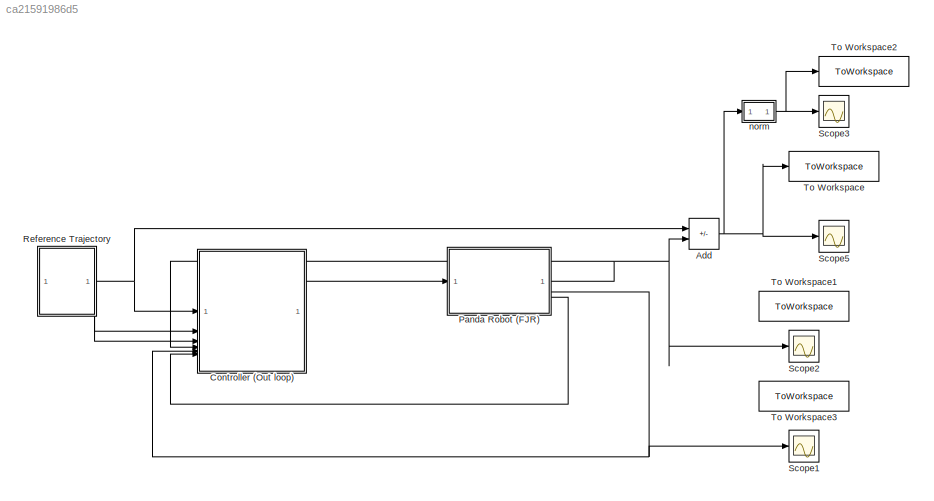
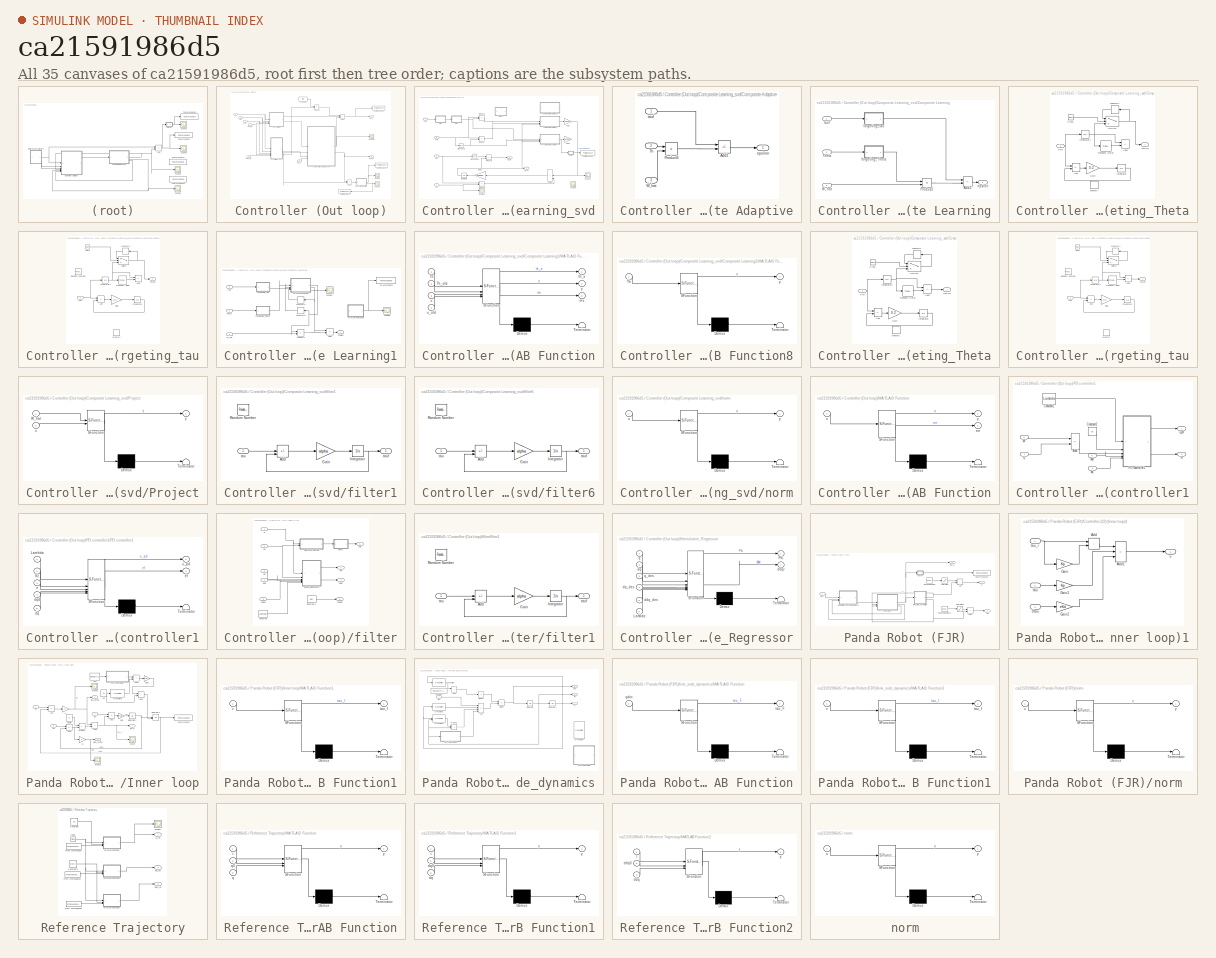
[diagram: thumbnail index - all 35 canvases of the model, root first then tree order]
MODEL mdl_ca21591986d5
KIND model
CONFIG AbsTol = auto
CONFIG EnableMultiTasking = off
CONFIG FixedStep = Ts
CONFIG MaxStep = 0.005
CONFIG MinStep = auto
CONFIG RelTol = 1e-5
CONFIG SampleTimeConstraint = Unconstrained
CONFIG SolverName = ode3
CONFIG StartTime = 0.0
CONFIG StopTime = 300
BLOCK [Sum] Add
  IconShape = rectangular
  Inputs = +-
BLOCK [SubSystem] Controller (Out loop)
BLOCK [Sum] Controller (Out loop)/Add2
  IconShape = rectangular
  Inputs = +++
BLOCK [Sum] Controller (Out loop)/Add3
  IconShape = rectangular
  Inputs = -+
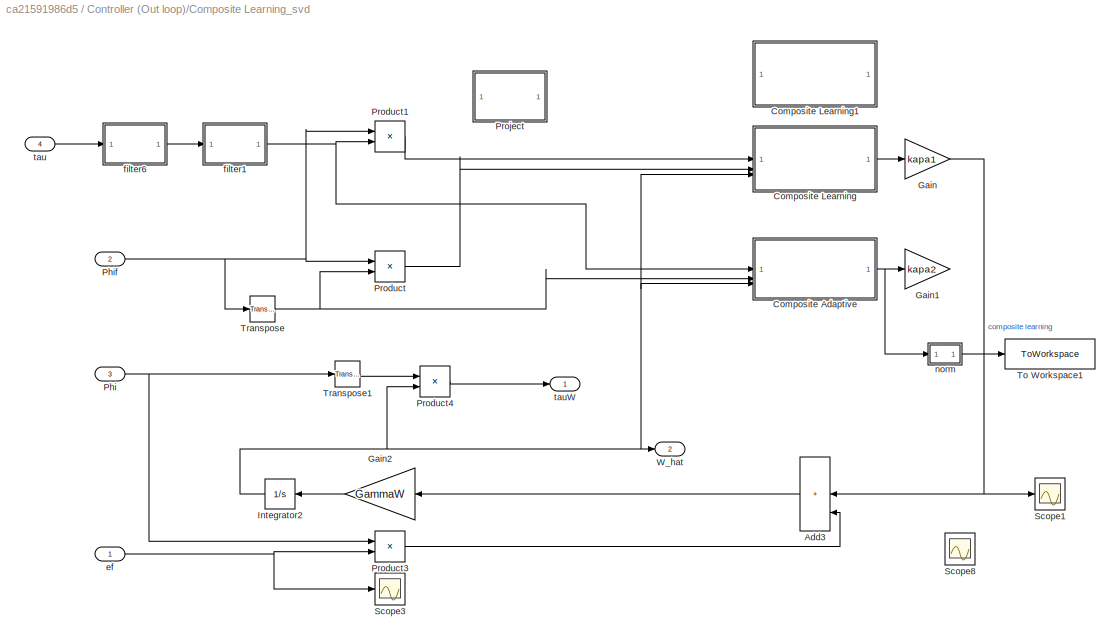
BLOCK [SubSystem] Controller (Out loop)/Composite Learning_svd
BLOCK [Sum] Controller (Out loop)/Composite Learning_svd/Add3
  IconShape = rectangular
  Inputs = +++
  NameLocation = top
BLOCK [SubSystem] Controller (Out loop)/Composite Learning_svd/Composite Adaptive
BLOCK [Sum] Controller (Out loop)/Composite Learning_svd/Composite Adaptive/Add1
  IconShape = rectangular
  Inputs = +-
BLOCK [Product] Controller (Out loop)/Composite Learning_svd/Composite Adaptive/Product6
  Multiplication = Matrix(*)
BLOCK [Inport] Controller (Out loop)/Composite Learning_svd/Composite Adaptive/Th
  Port = 2
BLOCK [Inport] Controller (Out loop)/Composite Learning_svd/Composite Adaptive/W_hat
  Port = 3
BLOCK [Outport] Controller (Out loop)/Composite Learning_svd/Composite Adaptive/epsilon
BLOCK [Inport] Controller (Out loop)/Composite Learning_svd/Composite Adaptive/tauf
BLOCK [SubSystem] Controller (Out loop)/Composite Learning_svd/Composite Learning
BLOCK [Sum] Controller (Out loop)/Composite Learning_svd/Composite Learning/Add2
  IconShape = rectangular
  Inputs = +-
BLOCK [Product] Controller (Out loop)/Composite Learning_svd/Composite Learning/Product2
  Multiplication = Matrix(*)
BLOCK [Inport] Controller (Out loop)/Composite Learning_svd/Composite Learning/Theta
  Port = 2
BLOCK [Inport] Controller (Out loop)/Composite Learning_svd/Composite Learning/W_hat
  Port = 3
BLOCK [Outport] Controller (Out loop)/Composite Learning_svd/Composite Learning/epsilon
BLOCK [SubSystem] Controller (Out loop)/Composite Learning_svd/Composite Learning/forgeting_Theta
BLOCK [Sum] Controller (Out loop)/Composite Learning_svd/Composite Learning/forgeting_Theta/Add
  Commented = on
  IconShape = rectangular
  Inputs = +-
BLOCK [Sum] Controller (Out loop)/Composite Learning_svd/Composite Learning/forgeting_Theta/Add1
  Commented = on
  IconShape = rectangular
  Inputs = +-
BLOCK [Clock] Controller (Out loop)/Composite Learning_svd/Composite Learning/forgeting_Theta/Clock
BLOCK [Gain] Controller (Out loop)/Composite Learning_svd/Composite Learning/forgeting_Theta/Gain
  Commented = on
  Gain = 0.2
BLOCK [Outport] Controller (Out loop)/Composite Learning_svd/Composite Learning/forgeting_Theta/IntPhif
BLOCK [Integrator] Controller (Out loop)/Composite Learning_svd/Composite Learning/forgeting_Theta/Integrator
  Commented = on
  LowerSaturationLimit = -20
  UpperSaturationLimit = 20
BLOCK [Integrator] Controller (Out loop)/Composite Learning_svd/Composite Learning/forgeting_Theta/Integrator2
  LowerSaturationLimit = -20
  UpperSaturationLimit = 20
BLOCK [Memory] Controller (Out loop)/Composite Learning_svd/Composite Learning/forgeting_Theta/Memory
  Commented = on
  NameLocation = top
BLOCK [Memory] Controller (Out loop)/Composite Learning_svd/Composite Learning/forgeting_Theta/Memory1
  NameLocation = top
BLOCK [Inport] Controller (Out loop)/Composite Learning_svd/Composite Learning/forgeting_Theta/Phif
BLOCK [Switch] Controller (Out loop)/Composite Learning_svd/Composite Learning/forgeting_Theta/Switch
  Criteria = u2 > Threshold
  InputSameDT = off
  SaturateOnIntegerOverflow = off
  Threshold = taud
BLOCK [TransportDelay] Controller (Out loop)/Composite Learning_svd/Composite Learning/forgeting_Theta/Transport Delay
  Commented = on
  DelayTime = taud
BLOCK [SubSystem] Controller (Out loop)/Composite Learning_svd/Composite Learning/forgeting_tau
BLOCK [Sum] Controller (Out loop)/Composite Learning_svd/Composite Learning/forgeting_tau/Add
  Commented = on
  IconShape = rectangular
  Inputs = +-
BLOCK [Sum] Controller (Out loop)/Composite Learning_svd/Composite Learning/forgeting_tau/Add1
  Commented = on
  IconShape = rectangular
  Inputs = +-
BLOCK [Clock] Controller (Out loop)/Composite Learning_svd/Composite Learning/forgeting_tau/Clock
BLOCK [Gain] Controller (Out loop)/Composite Learning_svd/Composite Learning/forgeting_tau/Gain
  Commented = on
  Gain = 0.2
BLOCK [Integrator] Controller (Out loop)/Composite Learning_svd/Composite Learning/forgeting_tau/Integrator
  Commented = on
  LowerSaturationLimit = -20
  UpperSaturationLimit = 20
BLOCK [Integrator] Controller (Out loop)/Composite Learning_svd/Composite Learning/forgeting_tau/Integrator1
  LowerSaturationLimit = -20
  UpperSaturationLimit = 20
BLOCK [Memory] Controller (Out loop)/Composite Learning_svd/Composite Learning/forgeting_tau/Memory
  Commented = on
  NameLocation = top
BLOCK [Memory] Controller (Out loop)/Composite Learning_svd/Composite Learning/forgeting_tau/Memory1
  NameLocation = top
BLOCK [RandomNumber] Controller (Out loop)/Composite Learning_svd/Composite Learning/forgeting_tau/Random Number
  Commented = on
  SampleTime = 0.1
  Variance = vari
BLOCK [Switch] Controller (Out loop)/Composite Learning_svd/Composite Learning/forgeting_tau/Switch
  Criteria = u2 > Threshold
  InputSameDT = off
  SaturateOnIntegerOverflow = off
  Threshold = taud
BLOCK [TransportDelay] Controller (Out loop)/Composite Learning_svd/Composite Learning/forgeting_tau/Transport Delay
  Commented = on
  DelayTime = taud
BLOCK [Outport] Controller (Out loop)/Composite Learning_svd/Composite Learning/forgeting_tau/tau_int
BLOCK [Inport] Controller (Out loop)/Composite Learning_svd/Composite Learning/forgeting_tau/tauf
BLOCK [Inport] Controller (Out loop)/Composite Learning_svd/Composite Learning/tauf
BLOCK [SubSystem] Controller (Out loop)/Composite Learning_svd/Composite Learning1
  Commented = on
BLOCK [Sum] Controller (Out loop)/Composite Learning_svd/Composite Learning1/Add2
  IconShape = rectangular
  Inputs = +-
BLOCK [SubSystem] Controller (Out loop)/Composite Learning_svd/Composite Learning1/MATLAB Function
  ErrorFcn = Stateflow.Translate.translate
  PermitHierarchicalResolution = ExplicitOnly
  SFBlockType = MATLAB Function
  TreatAsAtomicUnit = on
BLOCK [Demux] Controller (Out loop)/Composite Learning_svd/Composite Learning1/MATLAB Function/ Demux 
  Outputs = 1
BLOCK [S-Function] Controller (Out loop)/Composite Learning_svd/Composite Learning1/MATLAB Function/ SFunction 
  EnableBusSupport = on
  FunctionName = sf_sfun
  PortCounts = [4 4]
  SFcnIsStateOwnerBlock = off
  SFunctionDeploymentMode = off
  Tag = Stateflow S-Function 3
BLOCK [Terminator] Controller (Out loop)/Composite Learning_svd/Composite Learning1/MATLAB Function/ Terminator 
BLOCK [Inport] Controller (Out loop)/Composite Learning_svd/Composite Learning1/MATLAB Function/Th
BLOCK [Inport] Controller (Out loop)/Composite Learning_svd/Composite Learning1/MATLAB Function/Th_old
  Port = 2
BLOCK [Outport] Controller (Out loop)/Composite Learning_svd/Composite Learning1/MATLAB Function/mv
  Port = 3
BLOCK [Outport] Controller (Out loop)/Composite Learning_svd/Composite Learning1/MATLAB Function/th_e
BLOCK [Inport] Controller (Out loop)/Composite Learning_svd/Composite Learning1/MATLAB Function/u
  Port = 3
BLOCK [Inport] Controller (Out loop)/Composite Learning_svd/Composite Learning1/MATLAB Function/u_old
  Port = 4
BLOCK [Outport] Controller (Out loop)/Composite Learning_svd/Composite Learning1/MATLAB Function/y
  Port = 2
BLOCK [SubSystem] Controller (Out loop)/Composite Learning_svd/Composite Learning1/MATLAB Function8
  Commented = on
  ErrorFcn = Stateflow.Translate.translate
  PermitHierarchicalResolution = ExplicitOnly
  SFBlockType = MATLAB Function
  TreatAsAtomicUnit = on
BLOCK [Demux] Controller (Out loop)/Composite Learning_svd/Composite Learning1/MATLAB Function8/ Demux 
  Outputs = 1
BLOCK [S-Function] Controller (Out loop)/Composite Learning_svd/Composite Learning1/MATLAB Function8/ SFunction 
  EnableBusSupport = on
  FunctionName = sf_sfun
  PortCounts = [1 2]
  SFcnIsStateOwnerBlock = off
  SFunctionDeploymentMode = off
  Tag = Stateflow S-Function 5
BLOCK [Terminator] Controller (Out loop)/Composite Learning_svd/Composite Learning1/MATLAB Function8/ Terminator 
BLOCK [Inport] Controller (Out loop)/Composite Learning_svd/Composite Learning1/MATLAB Function8/Th
BLOCK [Outport] Controller (Out loop)/Composite Learning_svd/Composite Learning1/MATLAB Function8/y
BLOCK [Memory] Controller (Out loop)/Composite Learning_svd/Composite Learning1/Memory1
  NameLocation = top
BLOCK [Memory] Controller (Out loop)/Composite Learning_svd/Composite Learning1/Memory2
  NameLocation = top
BLOCK [Product] Controller (Out loop)/Composite Learning_svd/Composite Learning1/Product2
  Multiplication = Matrix(*)
BLOCK [Scope] Controller (Out loop)/Composite Learning_svd/Composite Learning1/Scope4
  Floating = off
  NumInputPorts = 1
  ScopeSpecificationString = Simulink.scopes.TimeScopeBlockCfg('CurrentConfiguration', extmgr.ConfigurationSet(extmgr.Configuration('Core','General UI',true),extmgr.Configuration('Core','Source UI',true),extmgr.Configuration('Sources','WiredSimulink',true,'DataLoggingVariableName','ScopeData3'),extmgr.Configuration('Visuals','Time Domain',true,'SerializedDisplays',{struct('MinYLimReal','-0.41341','MaxYLimReal','3.72068','YLab...<+1450ch>
BLOCK [Scope] Controller (Out loop)/Composite Learning_svd/Composite Learning1/Scope6
  Commented = on
  Floating = off
  NumInputPorts = 1
  ScopeSpecificationString = Simulink.scopes.TimeScopeBlockCfg('CurrentConfiguration', extmgr.ConfigurationSet(extmgr.Configuration('Core','General UI',true),extmgr.Configuration('Core','Source UI',true),extmgr.Configuration('Sources','WiredSimulink',true,'DataLoggingVariableName','ScopeData3'),extmgr.Configuration('Visuals','Time Domain',true,'SerializedDisplays',{struct('MinYLimReal','-0.03645','MaxYLimReal','0.32809','YLab...<+1449ch>
BLOCK [Inport] Controller (Out loop)/Composite Learning_svd/Composite Learning1/Theta
  Port = 2
BLOCK [ToWorkspace] Controller (Out loop)/Composite Learning_svd/Composite Learning1/To Workspace
  Commented = on
  FixptAsFi = on
  MaxDataPoints = inf
  SampleTime = -1
  SaveFormat = Timeseries
  VariableName = minsv
BLOCK [Inport] Controller (Out loop)/Composite Learning_svd/Composite Learning1/W_hat
  Port = 3
BLOCK [Outport] Controller (Out loop)/Composite Learning_svd/Composite Learning1/epsilon
BLOCK [SubSystem] Controller (Out loop)/Composite Learning_svd/Composite Learning1/forgeting_Theta
BLOCK [Sum] Controller (Out loop)/Composite Learning_svd/Composite Learning1/forgeting_Theta/Add
  Commented = on
  IconShape = rectangular
  Inputs = +-
BLOCK [Sum] Controller (Out loop)/Composite Learning_svd/Composite Learning1/forgeting_Theta/Add1
  IconShape = rectangular
  Inputs = +-
BLOCK [Clock] Controller (Out loop)/Composite Learning_svd/Composite Learning1/forgeting_Theta/Clock
  Commented = on
BLOCK [Gain] Controller (Out loop)/Composite Learning_svd/Composite Learning1/forgeting_Theta/Gain
  Commented = on
  Gain = 0.2
BLOCK [Outport] Controller (Out loop)/Composite Learning_svd/Composite Learning1/forgeting_Theta/IntPhif
BLOCK [Integrator] Controller (Out loop)/Composite Learning_svd/Composite Learning1/forgeting_Theta/Integrator
  Commented = on
  LowerSaturationLimit = -20
  UpperSaturationLimit = 20
BLOCK [Integrator] Controller (Out loop)/Composite Learning_svd/Composite Learning1/forgeting_Theta/Integrator2
  LowerSaturationLimit = -20
  UpperSaturationLimit = 20
BLOCK [Memory] Controller (Out loop)/Composite Learning_svd/Composite Learning1/forgeting_Theta/Memory
  Commented = on
  NameLocation = top
BLOCK [Memory] Controller (Out loop)/Composite Learning_svd/Composite Learning1/forgeting_Theta/Memory1
  Commented = on
  NameLocation = top
BLOCK [Inport] Controller (Out loop)/Composite Learning_svd/Composite Learning1/forgeting_Theta/Phif
BLOCK [Switch] Controller (Out loop)/Composite Learning_svd/Composite Learning1/forgeting_Theta/Switch
  Commented = on
  Criteria = u2 > Threshold
  InputSameDT = off
  SaturateOnIntegerOverflow = off
  Threshold = taud
BLOCK [TransportDelay] Controller (Out loop)/Composite Learning_svd/Composite Learning1/forgeting_Theta/Transport Delay
  DelayTime = taud
BLOCK [SubSystem] Controller (Out loop)/Composite Learning_svd/Composite Learning1/forgeting_tau
BLOCK [Sum] Controller (Out loop)/Composite Learning_svd/Composite Learning1/forgeting_tau/Add
  Commented = on
  IconShape = rectangular
  Inputs = +-
BLOCK [Sum] Controller (Out loop)/Composite Learning_svd/Composite Learning1/forgeting_tau/Add1
  IconShape = rectangular
  Inputs = +-
BLOCK [Clock] Controller (Out loop)/Composite Learning_svd/Composite Learning1/forgeting_tau/Clock
  Commented = on
BLOCK [Gain] Controller (Out loop)/Composite Learning_svd/Composite Learning1/forgeting_tau/Gain
  Commented = on
  Gain = 0.2
BLOCK [Integrator] Controller (Out loop)/Composite Learning_svd/Composite Learning1/forgeting_tau/Integrator
  Commented = on
  LowerSaturationLimit = -20
  UpperSaturationLimit = 20
BLOCK [Integrator] Controller (Out loop)/Composite Learning_svd/Composite Learning1/forgeting_tau/Integrator1
  LowerSaturationLimit = -20
  UpperSaturationLimit = 20
BLOCK [Memory] Controller (Out loop)/Composite Learning_svd/Composite Learning1/forgeting_tau/Memory
  Commented = on
  NameLocation = top
BLOCK [Memory] Controller (Out loop)/Composite Learning_svd/Composite Learning1/forgeting_tau/Memory1
  Commented = on
  NameLocation = top
BLOCK [RandomNumber] Controller (Out loop)/Composite Learning_svd/Composite Learning1/forgeting_tau/Random Number
  Commented = on
  SampleTime = 0.1
  Variance = vari
BLOCK [Switch] Controller (Out loop)/Composite Learning_svd/Composite Learning1/forgeting_tau/Switch
  Commented = on
  Criteria = u2 > Threshold
  InputSameDT = off
  SaturateOnIntegerOverflow = off
  Threshold = taud
BLOCK [TransportDelay] Controller (Out loop)/Composite Learning_svd/Composite Learning1/forgeting_tau/Transport Delay
  DelayTime = taud
BLOCK [Outport] Controller (Out loop)/Composite Learning_svd/Composite Learning1/forgeting_tau/tau_int
BLOCK [Inport] Controller (Out loop)/Composite Learning_svd/Composite Learning1/forgeting_tau/tauf
BLOCK [Inport] Controller (Out loop)/Composite Learning_svd/Composite Learning1/tauf
BLOCK [Gain] Controller (Out loop)/Composite Learning_svd/Gain
  Gain = kapa1
BLOCK [Gain] Controller (Out loop)/Composite Learning_svd/Gain1
  Commented = on
  Gain = kapa2
BLOCK [Gain] Controller (Out loop)/Composite Learning_svd/Gain2
  Gain = GammaW
  Multiplication = Matrix(K*u)
  NameLocation = top
BLOCK [Integrator] Controller (Out loop)/Composite Learning_svd/Integrator2
  LowerSaturationLimit = -1
  NameLocation = top
  UpperSaturationLimit = 10
BLOCK [Inport] Controller (Out loop)/Composite Learning_svd/Phi
  Port = 3
BLOCK [Inport] Controller (Out loop)/Composite Learning_svd/Phif
  Port = 2
BLOCK [Product] Controller (Out loop)/Composite Learning_svd/Product
  Multiplication = Matrix(*)
BLOCK [Product] Controller (Out loop)/Composite Learning_svd/Product1
  Multiplication = Matrix(*)
BLOCK [Product] Controller (Out loop)/Composite Learning_svd/Product3
  Multiplication = Matrix(*)
BLOCK [Product] Controller (Out loop)/Composite Learning_svd/Product4
  Multiplication = Matrix(*)
BLOCK [SubSystem] Controller (Out loop)/Composite Learning_svd/Project
  Commented = on
  ErrorFcn = Stateflow.Translate.translate
  NameLocation = top
  PermitHierarchicalResolution = ExplicitOnly
  SFBlockType = MATLAB Function
  TreatAsAtomicUnit = on
BLOCK [Demux] Controller (Out loop)/Composite Learning_svd/Project/ Demux 
  Outputs = 1
BLOCK [S-Function] Controller (Out loop)/Composite Learning_svd/Project/ SFunction 
  EnableBusSupport = on
  FunctionName = sf_sfun
  PortCounts = [2 2]
  SFcnIsStateOwnerBlock = off
  SFunctionDeploymentMode = off
  Tag = Stateflow S-Function 9
BLOCK [Terminator] Controller (Out loop)/Composite Learning_svd/Project/ Terminator 
BLOCK [Inport] Controller (Out loop)/Composite Learning_svd/Project/W_hat
BLOCK [Inport] Controller (Out loop)/Composite Learning_svd/Project/u
  Port = 2
BLOCK [Outport] Controller (Out loop)/Composite Learning_svd/Project/y
BLOCK [Scope] Controller (Out loop)/Composite Learning_svd/Scope1
  Floating = off
  NumInputPorts = 1
  ScopeSpecificationString = Simulink.scopes.TimeScopeBlockCfg('CurrentConfiguration', extmgr.ConfigurationSet(extmgr.Configuration('Core','General UI',true),extmgr.Configuration('Core','Source UI',true),extmgr.Configuration('Sources','WiredSimulink',true,'DataLoggingVariableName','ScopeData1'),extmgr.Configuration('Visuals','Time Domain',true,'SerializedDisplays',{struct('MinYLimReal','-1.63047','MaxYLimReal','1.81047','YLab...<+2981ch>
BLOCK [Scope] Controller (Out loop)/Composite Learning_svd/Scope3
  Floating = off
  NumInputPorts = 1
  ScopeSpecificationString = Simulink.scopes.TimeScopeBlockCfg('CurrentConfiguration', extmgr.ConfigurationSet(extmgr.Configuration('Core','General UI',true),extmgr.Configuration('Core','Source UI',true),extmgr.Configuration('Sources','WiredSimulink',true,'DataLoggingVariableName','ScopeData2'),extmgr.Configuration('Visuals','Time Domain',true,'SerializedDisplays',{struct('MinYLimReal','-0.69568','MaxYLimReal','1.03335','YLab...<+1459ch>
BLOCK [Scope] Controller (Out loop)/Composite Learning_svd/Scope8
  Floating = off
  NumInputPorts = 1
  ScopeSpecificationString = Simulink.scopes.TimeScopeBlockCfg('CurrentConfiguration', extmgr.ConfigurationSet(extmgr.Configuration('Core','General UI',true),extmgr.Configuration('Core','Source UI',true),extmgr.Configuration('Sources','WiredSimulink',true,'DataLoggingVariableName','ScopeData3'),extmgr.Configuration('Visuals','Time Domain',true,'SerializedDisplays',{struct('MinYLimReal','-13.83028','MaxYLimReal','18.02665','YL...<+2429ch>
BLOCK [ToWorkspace] Controller (Out loop)/Composite Learning_svd/To Workspace1
  FixptAsFi = on
  MaxDataPoints = inf
  SampleTime = -1
  SaveFormat = Timeseries
  VariableName = predict_err
BLOCK [Reference] Controller (Out loop)/Composite Learning_svd/Transpose  REF=matrix_library/Transpose
  SourceBlock = matrix_library/Transpose
  SourceType = Transpose
BLOCK [Reference] Controller (Out loop)/Composite Learning_svd/Transpose1  REF=matrix_library/Transpose
  SourceBlock = matrix_library/Transpose
  SourceType = Transpose
BLOCK [Outport] Controller (Out loop)/Composite Learning_svd/W_hat
  Port = 2
BLOCK [Inport] Controller (Out loop)/Composite Learning_svd/ef
BLOCK [SubSystem] Controller (Out loop)/Composite Learning_svd/filter1
BLOCK [Sum] Controller (Out loop)/Composite Learning_svd/filter1/Add
  IconShape = rectangular
  Inputs = ++-
BLOCK [Gain] Controller (Out loop)/Composite Learning_svd/filter1/Gain
  Gain = alpha
BLOCK [Integrator] Controller (Out loop)/Composite Learning_svd/filter1/Integrator
  LowerSaturationLimit = -20
  UpperSaturationLimit = 20
BLOCK [RandomNumber] Controller (Out loop)/Composite Learning_svd/filter1/Random Number
  SampleTime = 0.1
  Variance = vari
BLOCK [Inport] Controller (Out loop)/Composite Learning_svd/filter1/tau
BLOCK [Outport] Controller (Out loop)/Composite Learning_svd/filter1/tauf
BLOCK [SubSystem] Controller (Out loop)/Composite Learning_svd/filter6
BLOCK [Sum] Controller (Out loop)/Composite Learning_svd/filter6/Add
  IconShape = rectangular
  Inputs = ++-
BLOCK [Gain] Controller (Out loop)/Composite Learning_svd/filter6/Gain
  Gain = alpha
BLOCK [Integrator] Controller (Out loop)/Composite Learning_svd/filter6/Integrator
  LowerSaturationLimit = -20
  UpperSaturationLimit = 20
BLOCK [RandomNumber] Controller (Out loop)/Composite Learning_svd/filter6/Random Number
  SampleTime = 0.1
  Variance = vari
BLOCK [Inport] Controller (Out loop)/Composite Learning_svd/filter6/tau
BLOCK [Outport] Controller (Out loop)/Composite Learning_svd/filter6/tauf
BLOCK [SubSystem] Controller (Out loop)/Composite Learning_svd/norm
  ErrorFcn = Stateflow.Translate.translate
  PermitHierarchicalResolution = ExplicitOnly
  SFBlockType = MATLAB Function
  TreatAsAtomicUnit = on
BLOCK [Demux] Controller (Out loop)/Composite Learning_svd/norm/ Demux 
  Outputs = 1
BLOCK [S-Function] Controller (Out loop)/Composite Learning_svd/norm/ SFunction 
  EnableBusSupport = on
  FunctionName = sf_sfun
  PortCounts = [1 2]
  SFcnIsStateOwnerBlock = off
  SFunctionDeploymentMode = off
  Tag = Stateflow S-Function 10
BLOCK [Terminator] Controller (Out loop)/Composite Learning_svd/norm/ Terminator 
BLOCK [Inport] Controller (Out loop)/Composite Learning_svd/norm/u
BLOCK [Outport] Controller (Out loop)/Composite Learning_svd/norm/y
BLOCK [Inport] Controller (Out loop)/Composite Learning_svd/tau
  Port = 4
BLOCK [Outport] Controller (Out loop)/Composite Learning_svd/tauW
BLOCK [Constant] Controller (Out loop)/Constant5
  Value = Be
BLOCK [SubSystem] Controller (Out loop)/MATLAB Function
  ErrorFcn = Stateflow.Translate.translate
  PermitHierarchicalResolution = ExplicitOnly
  SFBlockType = MATLAB Function
  TreatAsAtomicUnit = on
BLOCK [Demux] Controller (Out loop)/MATLAB Function/ Demux 
  Outputs = 1
BLOCK [S-Function] Controller (Out loop)/MATLAB Function/ SFunction 
  EnableBusSupport = on
  FunctionName = sf_sfun
  PortCounts = [1 3]
  SFcnIsStateOwnerBlock = off
  SFunctionDeploymentMode = off
  Tag = Stateflow S-Function 95
BLOCK [Terminator] Controller (Out loop)/MATLAB Function/ Terminator 
BLOCK [Outport] Controller (Out loop)/MATLAB Function/err
  Port = 2
BLOCK [Inport] Controller (Out loop)/MATLAB Function/u
BLOCK [Outport] Controller (Out loop)/MATLAB Function/y
BLOCK [SubSystem] Controller (Out loop)/PD controller1
BLOCK [Sum] Controller (Out loop)/PD controller1/Add
  IconShape = rectangular
  Inputs = +-
BLOCK [Constant] Controller (Out loop)/PD controller1/Constant1
  Value = Lambda
BLOCK [Constant] Controller (Out loop)/PD controller1/Constant2
  Value = Kc
BLOCK [SubSystem] Controller (Out loop)/PD controller1/PD controller1
  ErrorFcn = Stateflow.Translate.translate
  PermitHierarchicalResolution = ExplicitOnly
  SFBlockType = MATLAB Function
  TreatAsAtomicUnit = on
BLOCK [Demux] Controller (Out loop)/PD controller1/PD controller1/ Demux 
  Outputs = 1
BLOCK [S-Function] Controller (Out loop)/PD controller1/PD controller1/ SFunction 
  EnableBusSupport = on
  FunctionName = sf_sfun
  PortCounts = [5 3]
  SFcnIsStateOwnerBlock = off
  SFunctionDeploymentMode = off
  Tag = Stateflow S-Function 1
BLOCK [Terminator] Controller (Out loop)/PD controller1/PD controller1/ Terminator 
BLOCK [Inport] Controller (Out loop)/PD controller1/PD controller1/Kc
  Port = 2
BLOCK [Inport] Controller (Out loop)/PD controller1/PD controller1/Lambda
BLOCK [Inport] Controller (Out loop)/PD controller1/PD controller1/dq
  Port = 5
BLOCK [Inport] Controller (Out loop)/PD controller1/PD controller1/dqd
  Port = 4
BLOCK [Inport] Controller (Out loop)/PD controller1/PD controller1/e
  Port = 3
BLOCK [Outport] Controller (Out loop)/PD controller1/PD controller1/ef
  Port = 2
BLOCK [Outport] Controller (Out loop)/PD controller1/PD controller1/u_pd
BLOCK [Inport] Controller (Out loop)/PD controller1/dq
  Port = 2
BLOCK [Inport] Controller (Out loop)/PD controller1/dqd
  Port = 4
BLOCK [Outport] Controller (Out loop)/PD controller1/ef
  Port = 2
BLOCK [Inport] Controller (Out loop)/PD controller1/q
BLOCK [Inport] Controller (Out loop)/PD controller1/qd
  Port = 3
BLOCK [Outport] Controller (Out loop)/PD controller1/u_pd
BLOCK [Product] Controller (Out loop)/Product1
  Multiplication = Matrix(*)
BLOCK [Scope] Controller (Out loop)/Scope
  Floating = off
  NumInputPorts = 1
  ScopeSpecificationString = Simulink.scopes.TimeScopeBlockCfg('CurrentConfiguration', extmgr.ConfigurationSet(extmgr.Configuration('Core','General UI',true),extmgr.Configuration('Core','Source UI',true),extmgr.Configuration('Sources','WiredSimulink',true,'DataLoggingVariableName','ScopeData1'),extmgr.Configuration('Visuals','Time Domain',true,'SerializedDisplays',{struct('MinYLimReal','1.1479','MaxYLimReal','4.39724','YLabel...<+1562ch>
BLOCK [Scope] Controller (Out loop)/Scope1
  Floating = off
  NumInputPorts = 1
  ScopeSpecificationString = Simulink.scopes.TimeScopeBlockCfg('CurrentConfiguration', extmgr.ConfigurationSet(extmgr.Configuration('Core','General UI',true),extmgr.Configuration('Core','Source UI',true),extmgr.Configuration('Sources','WiredSimulink',true,'DataLoggingVariableName','ScopeData1'),extmgr.Configuration('Visuals','Time Domain',true,'SerializedDisplays',{struct('MinYLimReal','-0.05997','MaxYLimReal','0.4974','YLabe...<+3162ch>
BLOCK [Scope] Controller (Out loop)/Scope2
  Floating = off
  NumInputPorts = 1
  ScopeSpecificationString = Simulink.scopes.TimeScopeBlockCfg('CurrentConfiguration', extmgr.ConfigurationSet(extmgr.Configuration('Core','General UI',true),extmgr.Configuration('Core','Source UI',true),extmgr.Configuration('Sources','WiredSimulink',true,'DataLoggingVariableName','ScopeData6'),extmgr.Configuration('Visuals','Time Domain',true,'SerializedDisplays',{struct('MinYLimReal','-1.00000','MaxYLimReal','1.00000','YLab...<+1655ch>
BLOCK [ToWorkspace] Controller (Out loop)/To Workspace
  Commented = on
  FixptAsFi = on
  MaxDataPoints = inf
  NameLocation = top
  SampleTime = -1
  SaveFormat = Timeseries
  VariableName = par_err
BLOCK [ToWorkspace] Controller (Out loop)/To Workspace1
  FixptAsFi = on
  MaxDataPoints = inf
  SampleTime = -1
  SaveFormat = Timeseries
  VariableName = err_norm
BLOCK [ToWorkspace] Controller (Out loop)/To Workspace2
  FixptAsFi = on
  MaxDataPoints = inf
  SampleTime = -1
  SaveFormat = Timeseries
  VariableName = tau_r
BLOCK [Outport] Controller (Out loop)/W_hat
  Port = 2
BLOCK [Inport] Controller (Out loop)/ddq_ref
  Port = 3
BLOCK [Inport] Controller (Out loop)/dq
  Port = 5
BLOCK [Inport] Controller (Out loop)/dq_ref
  Port = 2
BLOCK [SubSystem] Controller (Out loop)/filter
BLOCK [Constant] Controller (Out loop)/filter/Constant
  Value = Lambda
BLOCK [Constant] Controller (Out loop)/filter/Constant1
  Value = par
BLOCK [Outport] Controller (Out loop)/filter/Phi
  Port = 2
BLOCK [Outport] Controller (Out loop)/filter/Phif
BLOCK [ModelReference] Controller (Out loop)/filter/RegressorFiltering
  CopyOfModelProtected = on
  ModelNameDialog = RegressorFiltering
  ModelReferenceVersion = 4.6
BLOCK [Inport] Controller (Out loop)/filter/ddqd
  Port = 5
BLOCK [Outport] Controller (Out loop)/filter/ddqr
  Port = 4
BLOCK [Inport] Controller (Out loop)/filter/dq
  Port = 2
BLOCK [Inport] Controller (Out loop)/filter/dqd
  Port = 4
BLOCK [SubSystem] Controller (Out loop)/filter/filter1
BLOCK [Sum] Controller (Out loop)/filter/filter1/Add
  IconShape = rectangular
  Inputs = ++-
BLOCK [Gain] Controller (Out loop)/filter/filter1/Gain
  Gain = alpha
BLOCK [Integrator] Controller (Out loop)/filter/filter1/Integrator
  LowerSaturationLimit = -20
  UpperSaturationLimit = 20
BLOCK [RandomNumber] Controller (Out loop)/filter/filter1/Random Number
  SampleTime = 0.1
  Variance = vari
BLOCK [Inport] Controller (Out loop)/filter/filter1/tau
BLOCK [Outport] Controller (Out loop)/filter/filter1/tauf
BLOCK [Inport] Controller (Out loop)/filter/q
BLOCK [Inport] Controller (Out loop)/filter/qd
  Port = 3
BLOCK [Outport] Controller (Out loop)/filter/realPar
  Port = 3
BLOCK [SubSystem] Controller (Out loop)/filter/slotine_Regressor
  ErrorFcn = Stateflow.Translate.translate
  PermitHierarchicalResolution = ExplicitOnly
  SFBlockType = MATLAB Function
  TreatAsAtomicUnit = on
BLOCK [Demux] Controller (Out loop)/filter/slotine_Regressor/ Demux 
  Outputs = 1
BLOCK [S-Function] Controller (Out loop)/filter/slotine_Regressor/ SFunction 
  EnableBusSupport = on
  FunctionName = sf_sfun
  PortCounts = [6 3]
  SFcnIsStateOwnerBlock = off
  SFunctionDeploymentMode = off
  Tag = Stateflow S-Function 11
BLOCK [Terminator] Controller (Out loop)/filter/slotine_Regressor/ Terminator 
BLOCK [Inport] Controller (Out loop)/filter/slotine_Regressor/Lambda
  Port = 6
BLOCK [Outport] Controller (Out loop)/filter/slotine_Regressor/Phi
BLOCK [Inport] Controller (Out loop)/filter/slotine_Regressor/ddq_des
  Port = 5
BLOCK [Outport] Controller (Out loop)/filter/slotine_Regressor/ddqr
  Port = 2
BLOCK [Inport] Controller (Out loop)/filter/slotine_Regressor/dq
  Port = 2
BLOCK [Inport] Controller (Out loop)/filter/slotine_Regressor/dq_des
  Port = 4
BLOCK [Inport] Controller (Out loop)/filter/slotine_Regressor/q
BLOCK [Inport] Controller (Out loop)/filter/slotine_Regressor/q_des
  Port = 3
BLOCK [Inport] Controller (Out loop)/q
  Port = 4
BLOCK [Inport] Controller (Out loop)/q_ref
BLOCK [Inport] Controller (Out loop)/tau_a
  Port = 6
BLOCK [Outport] Controller (Out loop)/tau_r
BLOCK [SubSystem] Panda Robot (FJR)
BLOCK [Sum] Panda Robot (FJR)/Add
  IconShape = rectangular
BLOCK [Sum] Panda Robot (FJR)/Add1
  IconShape = rectangular
BLOCK [SubSystem] Panda Robot (FJR)/Controller (22) (Inner loop)1
BLOCK [Sum] Panda Robot (FJR)/Controller (22) (Inner loop)1/Add
  IconShape = rectangular
BLOCK [Sum] Panda Robot (FJR)/Controller (22) (Inner loop)1/Add1
  IconShape = rectangular
  Inputs = +--
BLOCK [Gain] Panda Robot (FJR)/Controller (22) (Inner loop)1/Gain
  Gain = Kp
  Multiplication = Matrix(K*u)
BLOCK [Gain] Panda Robot (FJR)/Controller (22) (Inner loop)1/Gain1
  Gain = Kp
  Multiplication = Matrix(K*u)
BLOCK [Gain] Panda Robot (FJR)/Controller (22) (Inner loop)1/Gain2
  Gain = eKd
  Multiplication = Matrix(K*u)
BLOCK [Inport] Panda Robot (FJR)/Controller (22) (Inner loop)1/dtau
  Port = 3
BLOCK [Inport] Panda Robot (FJR)/Controller (22) (Inner loop)1/tau
  Port = 2
BLOCK [Inport] Panda Robot (FJR)/Controller (22) (Inner loop)1/tau_r
BLOCK [Outport] Panda Robot (FJR)/Controller (22) (Inner loop)1/u
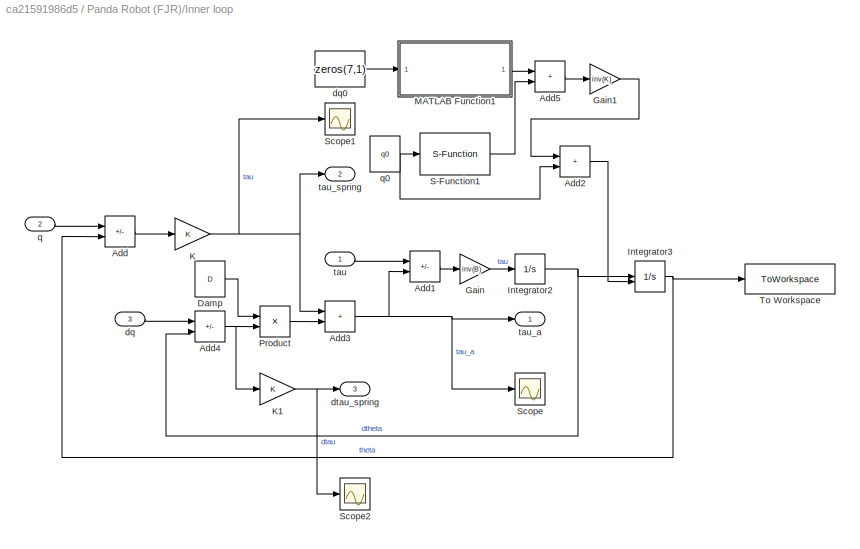
BLOCK [SubSystem] Panda Robot (FJR)/Inner loop
BLOCK [Sum] Panda Robot (FJR)/Inner loop/Add
  IconShape = rectangular
  Inputs = -+
BLOCK [Sum] Panda Robot (FJR)/Inner loop/Add1
  IconShape = rectangular
  Inputs = +-
BLOCK [Sum] Panda Robot (FJR)/Inner loop/Add2
  IconShape = rectangular
BLOCK [Sum] Panda Robot (FJR)/Inner loop/Add3
  IconShape = rectangular
BLOCK [Sum] Panda Robot (FJR)/Inner loop/Add4
  IconShape = rectangular
  Inputs = -+
BLOCK [Sum] Panda Robot (FJR)/Inner loop/Add5
  IconShape = rectangular
BLOCK [Constant] Panda Robot (FJR)/Inner loop/Damp
  Value = D
BLOCK [Gain] Panda Robot (FJR)/Inner loop/Gain
  Gain = inv(B)
  Multiplication = Matrix(K*u)
BLOCK [Gain] Panda Robot (FJR)/Inner loop/Gain1
  Gain = inv(K)
  Multiplication = Matrix(K*u)
BLOCK [Integrator] Panda Robot (FJR)/Inner loop/Integrator2
BLOCK [Integrator] Panda Robot (FJR)/Inner loop/Integrator3
  InitialCondition = q0+K\gravityMatrix(q0)
  InitialConditionSource = external
BLOCK [Gain] Panda Robot (FJR)/Inner loop/K
  Gain = K
  Multiplication = Matrix(K*u)
BLOCK [Gain] Panda Robot (FJR)/Inner loop/K1
  Gain = K
  Multiplication = Matrix(K*u)
BLOCK [SubSystem] Panda Robot (FJR)/Inner loop/MATLAB Function1
  ErrorFcn = Stateflow.Translate.translate
  PermitHierarchicalResolution = ExplicitOnly
  SFBlockType = MATLAB Function
  TreatAsAtomicUnit = on
BLOCK [Demux] Panda Robot (FJR)/Inner loop/MATLAB Function1/ Demux 
  Outputs = 1
BLOCK [S-Function] Panda Robot (FJR)/Inner loop/MATLAB Function1/ SFunction 
  EnableBusSupport = on
  FunctionName = sf_sfun
  PortCounts = [1 2]
  SFcnIsStateOwnerBlock = off
  SFunctionDeploymentMode = off
  Tag = Stateflow S-Function 28
BLOCK [Terminator] Panda Robot (FJR)/Inner loop/MATLAB Function1/ Terminator 
BLOCK [Outport] Panda Robot (FJR)/Inner loop/MATLAB Function1/tau_f
BLOCK [Inport] Panda Robot (FJR)/Inner loop/MATLAB Function1/v
BLOCK [Product] Panda Robot (FJR)/Inner loop/Product
  Multiplication = Matrix(*)
BLOCK [S-Function] Panda Robot (FJR)/Inner loop/S-Function1
  EnableBusSupport = off
  FunctionName = gravityMatrix
  SFcnIsStateOwnerBlock = off
  SFunctionDeploymentMode = off
BLOCK [Scope] Panda Robot (FJR)/Inner loop/Scope
  Floating = off
  NumInputPorts = 1
  ScopeSpecificationString = Simulink.scopes.TimeScopeBlockCfg('CurrentConfiguration', extmgr.ConfigurationSet(extmgr.Configuration('Core','General UI',true),extmgr.Configuration('Core','Source UI',true),extmgr.Configuration('Sources','WiredSimulink',true,'DataLoggingVariableName','ScopeData2'),extmgr.Configuration('Visuals','Time Domain',true,'SerializedDisplays',{struct('MinYLimReal','-22.17612','MaxYLimReal','28.52242','YL...<+1637ch>
BLOCK [Scope] Panda Robot (FJR)/Inner loop/Scope1
  Floating = off
  NumInputPorts = 1
  ScopeSpecificationString = Simulink.scopes.TimeScopeBlockCfg('CurrentConfiguration', extmgr.ConfigurationSet(extmgr.Configuration('Core','General UI',true),extmgr.Configuration('Core','Source UI',true),extmgr.Configuration('Sources','WiredSimulink',true,'DataLoggingVariableName','ScopeData3'),extmgr.Configuration('Visuals','Time Domain',true,'SerializedDisplays',{struct('MinYLimReal','-22.3317','MaxYLimReal','28.04361','YLa...<+1621ch>
BLOCK [Scope] Panda Robot (FJR)/Inner loop/Scope2
  Floating = off
  NumInputPorts = 1
  ScopeSpecificationString = Simulink.scopes.TimeScopeBlockCfg('CurrentConfiguration', extmgr.ConfigurationSet(extmgr.Configuration('Core','General UI',true),extmgr.Configuration('Core','Source UI',true),extmgr.Configuration('Sources','WiredSimulink',true,'DataLoggingVariableName','ScopeData4'),extmgr.Configuration('Visuals','Time Domain',true,'SerializedDisplays',{struct('MinYLimReal','-3898.52756','MaxYLimReal','2690.06115'...<+1646ch>
BLOCK [ToWorkspace] Panda Robot (FJR)/Inner loop/To Workspace
  Commented = on
  FixptAsFi = on
  MaxDataPoints = inf
  SampleTime = -1
  SaveFormat = Timeseries
  VariableName = theta
BLOCK [Inport] Panda Robot (FJR)/Inner loop/dq
  Port = 3
BLOCK [Constant] Panda Robot (FJR)/Inner loop/dq0
  Value = zeros(7,1)
BLOCK [Outport] Panda Robot (FJR)/Inner loop/dtau_spring
  Port = 3
BLOCK [Inport] Panda Robot (FJR)/Inner loop/q
  Port = 2
BLOCK [Constant] Panda Robot (FJR)/Inner loop/q0
  Value = q0
BLOCK [Inport] Panda Robot (FJR)/Inner loop/tau
BLOCK [Outport] Panda Robot (FJR)/Inner loop/tau_a
BLOCK [Outport] Panda Robot (FJR)/Inner loop/tau_spring
  Port = 2
BLOCK [RandomNumber] Panda Robot (FJR)/Random Number
  SampleTime = Ts
  Variance = vari
BLOCK [RandomNumber] Panda Robot (FJR)/Random Number1
  SampleTime = Ts
  Variance = vari
BLOCK [Saturate] Panda Robot (FJR)/Saturation
  LowerLimit = -3*SD
  UpperLimit = 3*SD
BLOCK [Saturate] Panda Robot (FJR)/Saturation1
  LowerLimit = -3*SD
  UpperLimit = 3*SD
BLOCK [ToWorkspace] Panda Robot (FJR)/To Workspace2
  FixptAsFi = on
  MaxDataPoints = inf
  SampleTime = -1
  SaveFormat = Timeseries
  VariableName = tau_a
BLOCK [Outport] Panda Robot (FJR)/dq
  Port = 2
BLOCK [SubSystem] Panda Robot (FJR)/link_side_dynamics
BLOCK [Sum] Panda Robot (FJR)/link_side_dynamics/Add
  IconShape = rectangular
  Inputs = +---
BLOCK [Sum] Panda Robot (FJR)/link_side_dynamics/Add1
  IconShape = rectangular
BLOCK [Constant] Panda Robot (FJR)/link_side_dynamics/Constant
  Commented = on
  Value = inv(eye(7)+Kp)*B
BLOCK [Product] Panda Robot (FJR)/link_side_dynamics/Divide
  Inputs = **
  Multiplication = Matrix(*)
BLOCK [Product] Panda Robot (FJR)/link_side_dynamics/Divide2
  Inputs = /
  Multiplication = Matrix(*)
BLOCK [Integrator] Panda Robot (FJR)/link_side_dynamics/Integrator
BLOCK [Integrator] Panda Robot (FJR)/link_side_dynamics/Integrator1
  InitialCondition = q0
BLOCK [SubSystem] Panda Robot (FJR)/link_side_dynamics/MATLAB Function
  Commented = on
  ErrorFcn = Stateflow.Translate.translate
  PermitHierarchicalResolution = ExplicitOnly
  SFBlockType = MATLAB Function
  TreatAsAtomicUnit = on
BLOCK [Demux] Panda Robot (FJR)/link_side_dynamics/MATLAB Function/ Demux 
  Outputs = 1
BLOCK [S-Function] Panda Robot (FJR)/link_side_dynamics/MATLAB Function/ SFunction 
  EnableBusSupport = on
  FunctionName = sf_sfun
  PortCounts = [1 2]
  SFcnIsStateOwnerBlock = off
  SFunctionDeploymentMode = off
  Tag = Stateflow S-Function 24
BLOCK [Terminator] Panda Robot (FJR)/link_side_dynamics/MATLAB Function/ Terminator 
BLOCK [Inport] Panda Robot (FJR)/link_side_dynamics/MATLAB Function/qdot
BLOCK [Outport] Panda Robot (FJR)/link_side_dynamics/MATLAB Function/tau_F
BLOCK [SubSystem] Panda Robot (FJR)/link_side_dynamics/MATLAB Function1
  ErrorFcn = Stateflow.Translate.translate
  PermitHierarchicalResolution = ExplicitOnly
  SFBlockType = MATLAB Function
  TreatAsAtomicUnit = on
BLOCK [Demux] Panda Robot (FJR)/link_side_dynamics/MATLAB Function1/ Demux 
  Outputs = 1
BLOCK [S-Function] Panda Robot (FJR)/link_side_dynamics/MATLAB Function1/ SFunction 
  EnableBusSupport = on
  FunctionName = sf_sfun
  PortCounts = [1 2]
  SFcnIsStateOwnerBlock = off
  SFunctionDeploymentMode = off
  Tag = Stateflow S-Function 25
BLOCK [Terminator] Panda Robot (FJR)/link_side_dynamics/MATLAB Function1/ Terminator 
BLOCK [Outport] Panda Robot (FJR)/link_side_dynamics/MATLAB Function1/tau_f
BLOCK [Inport] Panda Robot (FJR)/link_side_dynamics/MATLAB Function1/v
BLOCK [Product] Panda Robot (FJR)/link_side_dynamics/Product
  Multiplication = Matrix(*)
BLOCK [S-Function] Panda Robot (FJR)/link_side_dynamics/S-Function
  EnableBusSupport = off
  FunctionName = massMatrix
  SFcnIsStateOwnerBlock = off
  SFunctionDeploymentMode = off
BLOCK [S-Function] Panda Robot (FJR)/link_side_dynamics/S-Function1
  EnableBusSupport = off
  FunctionName = gravityMatrix
  SFcnIsStateOwnerBlock = off
  SFunctionDeploymentMode = off
BLOCK [S-Function] Panda Robot (FJR)/link_side_dynamics/S-Function2
  EnableBusSupport = off
  FunctionName = cloriMatrix
  SFcnIsStateOwnerBlock = off
  SFunctionDeploymentMode = off
BLOCK [S-Function] Panda Robot (FJR)/link_side_dynamics/S-Function4
  Commented = on
  EnableBusSupport = off
  FunctionName = frictionMatrix
  SFcnIsStateOwnerBlock = off
  SFunctionDeploymentMode = off
BLOCK [Outport] Panda Robot (FJR)/link_side_dynamics/ddq
  Port = 3
BLOCK [Outport] Panda Robot (FJR)/link_side_dynamics/dq
  Port = 2
BLOCK [Outport] Panda Robot (FJR)/link_side_dynamics/q
BLOCK [Inport] Panda Robot (FJR)/link_side_dynamics/tau
BLOCK [SubSystem] Panda Robot (FJR)/norm
  ErrorFcn = Stateflow.Translate.translate
  PermitHierarchicalResolution = ExplicitOnly
  SFBlockType = MATLAB Function
  TreatAsAtomicUnit = on
BLOCK [Demux] Panda Robot (FJR)/norm/ Demux 
  Outputs = 1
BLOCK [S-Function] Panda Robot (FJR)/norm/ SFunction 
  EnableBusSupport = on
  FunctionName = sf_sfun
  PortCounts = [1 2]
  SFcnIsStateOwnerBlock = off
  SFunctionDeploymentMode = off
  Tag = Stateflow S-Function 2
BLOCK [Terminator] Panda Robot (FJR)/norm/ Terminator 
BLOCK [Inport] Panda Robot (FJR)/norm/u
BLOCK [Outport] Panda Robot (FJR)/norm/y
BLOCK [Outport] Panda Robot (FJR)/q
BLOCK [Outport] Panda Robot (FJR)/tau_a
  Port = 3
BLOCK [Inport] Panda Robot (FJR)/tau_r
BLOCK [SubSystem] Reference Trajectory
BLOCK [Clock] Reference Trajectory/Clock
BLOCK [Constant] Reference Trajectory/Constant
  Value = q0
BLOCK [Constant] Reference Trajectory/Constant1
  Value = zeros(7,1)
BLOCK [FromWorkspace] Reference Trajectory/From Workspace
  VariableName = traj.qd
BLOCK [FromWorkspace] Reference Trajectory/From Workspace1
  VariableName = traj.dqd
BLOCK [FromWorkspace] Reference Trajectory/From Workspace2
  VariableName = traj.ddqd
BLOCK [SubSystem] Reference Trajectory/MATLAB Function
  ErrorFcn = Stateflow.Translate.translate
  PermitHierarchicalResolution = ExplicitOnly
  SFBlockType = MATLAB Function
  TreatAsAtomicUnit = on
BLOCK [Demux] Reference Trajectory/MATLAB Function/ Demux 
  Outputs = 1
BLOCK [S-Function] Reference Trajectory/MATLAB Function/ SFunction 
  EnableBusSupport = on
  FunctionName = sf_sfun
  PortCounts = [3 2]
  SFcnIsStateOwnerBlock = off
  SFunctionDeploymentMode = off
  Tag = Stateflow S-Function 12
BLOCK [Terminator] Reference Trajectory/MATLAB Function/ Terminator 
BLOCK [Inport] Reference Trajectory/MATLAB Function/q
  Port = 3
BLOCK [Inport] Reference Trajectory/MATLAB Function/q0
  Port = 2
BLOCK [Inport] Reference Trajectory/MATLAB Function/t
BLOCK [Outport] Reference Trajectory/MATLAB Function/y
BLOCK [SubSystem] Reference Trajectory/MATLAB Function1
  ErrorFcn = Stateflow.Translate.translate
  PermitHierarchicalResolution = ExplicitOnly
  SFBlockType = MATLAB Function
  TreatAsAtomicUnit = on
BLOCK [Demux] Reference Trajectory/MATLAB Function1/ Demux 
  Outputs = 1
BLOCK [S-Function] Reference Trajectory/MATLAB Function1/ SFunction 
  EnableBusSupport = on
  FunctionName = sf_sfun
  PortCounts = [3 2]
  SFcnIsStateOwnerBlock = off
  SFunctionDeploymentMode = off
  Tag = Stateflow S-Function 13
BLOCK [Terminator] Reference Trajectory/MATLAB Function1/ Terminator 
BLOCK [Inport] Reference Trajectory/MATLAB Function1/dq
  Port = 3
BLOCK [Inport] Reference Trajectory/MATLAB Function1/dq0
  Port = 2
BLOCK [Inport] Reference Trajectory/MATLAB Function1/t
BLOCK [Outport] Reference Trajectory/MATLAB Function1/y
BLOCK [SubSystem] Reference Trajectory/MATLAB Function2
  ErrorFcn = Stateflow.Translate.translate
  PermitHierarchicalResolution = ExplicitOnly
  SFBlockType = MATLAB Function
  TreatAsAtomicUnit = on
BLOCK [Demux] Reference Trajectory/MATLAB Function2/ Demux 
  Outputs = 1
BLOCK [S-Function] Reference Trajectory/MATLAB Function2/ SFunction 
  EnableBusSupport = on
  FunctionName = sf_sfun
  PortCounts = [3 2]
  SFcnIsStateOwnerBlock = off
  SFunctionDeploymentMode = off
  Tag = Stateflow S-Function 17
BLOCK [Terminator] Reference Trajectory/MATLAB Function2/ Terminator 
BLOCK [Inport] Reference Trajectory/MATLAB Function2/ddq
  Port = 3
BLOCK [Inport] Reference Trajectory/MATLAB Function2/ddq0
  Port = 2
BLOCK [Inport] Reference Trajectory/MATLAB Function2/t
BLOCK [Outport] Reference Trajectory/MATLAB Function2/y
BLOCK [Scope] Reference Trajectory/Scope2
  Floating = off
  NumInputPorts = 1
  ScopeSpecificationString = Simulink.scopes.TimeScopeBlockCfg('CurrentConfiguration', extmgr.ConfigurationSet(extmgr.Configuration('Core','General UI',true),extmgr.Configuration('Core','Source UI',true),extmgr.Configuration('Sources','WiredSimulink',true,'DataLoggingVariableName','ScopeData1'),extmgr.Configuration('Visuals','Time Domain',true,'SerializedDisplays',{struct('MinYLimReal','1.4999994','MaxYLimReal','1.5000016','Y...<+1703ch>
BLOCK [Outport] Reference Trajectory/ddq_ref
  Port = 3
BLOCK [Outport] Reference Trajectory/dq_ref
  Port = 2
BLOCK [Outport] Reference Trajectory/q_ref
BLOCK [Scope] Scope1
  Floating = off
  NumInputPorts = 1
  ScopeSpecificationString = Simulink.scopes.TimeScopeBlockCfg('CurrentConfiguration', extmgr.ConfigurationSet(extmgr.Configuration('Core','General UI',true),extmgr.Configuration('Core','Source UI',true),extmgr.Configuration('Sources','WiredSimulink',true,'DataLoggingVariableName','ScopeData4'),extmgr.Configuration('Visuals','Time Domain',true,'SerializedDisplays',{struct('MinYLimReal','-1.47815','MaxYLimReal','1.74628','YLab...<+1729ch>
BLOCK [Scope] Scope2
  Floating = off
  NumInputPorts = 1
  ScopeSpecificationString = Simulink.scopes.TimeScopeBlockCfg('CurrentConfiguration', extmgr.ConfigurationSet(extmgr.Configuration('Core','General UI',true),extmgr.Configuration('Core','Source UI',true),extmgr.Configuration('Sources','WiredSimulink',true,'DataLoggingVariableName','ScopeData3'),extmgr.Configuration('Visuals','Time Domain',true,'SerializedDisplays',{struct('MinYLimReal','-2.55146','MaxYLimReal','1.99145','YLab...<+1729ch>
BLOCK [Scope] Scope3
  Floating = off
  NumInputPorts = 1
  ScopeSpecificationString = Simulink.scopes.TimeScopeBlockCfg('CurrentConfiguration', extmgr.ConfigurationSet(extmgr.Configuration('Core','General UI',true),extmgr.Configuration('Core','Source UI',true),extmgr.Configuration('Sources','WiredSimulink',true,'DataLoggingVariableName','ScopeData1'),extmgr.Configuration('Visuals','Time Domain',true,'SerializedDisplays',{struct('MinYLimReal','0.00000074','MaxYLimReal','0.00000105',...<+1603ch>
BLOCK [Scope] Scope5
  Floating = off
  NumInputPorts = 1
  ScopeSpecificationString = Simulink.scopes.TimeScopeBlockCfg('CurrentConfiguration', extmgr.ConfigurationSet(extmgr.Configuration('Core','General UI',true),extmgr.Configuration('Core','Source UI',true),extmgr.Configuration('Sources','WiredSimulink',true,'DataLoggingVariableName','ScopeData1'),extmgr.Configuration('Visuals','Time Domain',true,'SerializedDisplays',{struct('MinYLimReal','-0.0486','MaxYLimReal','0.05792','YLabe...<+1628ch>
BLOCK [ToWorkspace] To Workspace
  FixptAsFi = on
  MaxDataPoints = inf
  SampleTime = -1
  SaveFormat = Timeseries
  VariableName = q_err
BLOCK [ToWorkspace] To Workspace1
  Commented = on
  FixptAsFi = on
  MaxDataPoints = inf
  SampleTime = -1
  SaveFormat = Timeseries
  VariableName = q
BLOCK [ToWorkspace] To Workspace2
  FixptAsFi = on
  MaxDataPoints = inf
  SampleTime = -1
  SaveFormat = Timeseries
  VariableName = q_err_norm
BLOCK [ToWorkspace] To Workspace3
  Commented = on
  FixptAsFi = on
  MaxDataPoints = inf
  SampleTime = -1
  SaveFormat = Timeseries
  VariableName = dq
BLOCK [SubSystem] norm
  ErrorFcn = Stateflow.Translate.translate
  PermitHierarchicalResolution = ExplicitOnly
  SFBlockType = MATLAB Function
  TreatAsAtomicUnit = on
BLOCK [Demux] norm/ Demux 
  Outputs = 1
BLOCK [S-Function] norm/ SFunction 
  EnableBusSupport = on
  FunctionName = sf_sfun
  PortCounts = [1 2]
  SFcnIsStateOwnerBlock = off
  SFunctionDeploymentMode = off
  Tag = Stateflow S-Function 8
BLOCK [Terminator] norm/ Terminator 
BLOCK [Inport] norm/u
BLOCK [Outport] norm/y
NET Add:1 -> Scope5:1, To Workspace:1, norm:1
NET Controller (Out loop)/Add2:1 -> Controller (Out loop)/To Workspace2:1, Controller (Out loop)/tau_r:1
LINE Controller (Out loop)/Add3:1 -> Controller (Out loop)/MATLAB Function:1
LINE Controller (Out loop)/Composite Learning_svd/Add3:1 -> Controller (Out loop)/Composite Learning_svd/Gain2:1
LINE Controller (Out loop)/Composite Learning_svd/Composite Adaptive/Add1:1 -> Controller (Out loop)/Composite Learning_svd/Composite Adaptive/epsilon:1
LINE Controller (Out loop)/Composite Learning_svd/Composite Adaptive/Product6:1 -> Controller (Out loop)/Composite Learning_svd/Composite Adaptive/Add1:2
LINE Controller (Out loop)/Composite Learning_svd/Composite Adaptive/Th:1 -> Controller (Out loop)/Composite Learning_svd/Composite Adaptive/Product6:1
LINE Controller (Out loop)/Composite Learning_svd/Composite Adaptive/W_hat:1 -> Controller (Out loop)/Composite Learning_svd/Composite Adaptive/Product6:2
LINE Controller (Out loop)/Composite Learning_svd/Composite Adaptive/tauf:1 -> Controller (Out loop)/Composite Learning_svd/Composite Adaptive/Add1:1
NET Controller (Out loop)/Composite Learning_svd/Composite Adaptive:1 -> Controller (Out loop)/Composite Learning_svd/Gain1:1, Controller (Out loop)/Composite Learning_svd/norm:1
LINE Controller (Out loop)/Composite Learning_svd/Composite Learning/Add2:1 -> Controller (Out loop)/Composite Learning_svd/Composite Learning/epsilon:1
LINE Controller (Out loop)/Composite Learning_svd/Composite Learning/Product2:1 -> Controller (Out loop)/Composite Learning_svd/Composite Learning/Add2:2
LINE Controller (Out loop)/Composite Learning_svd/Composite Learning/Theta:1 -> Controller (Out loop)/Composite Learning_svd/Composite Learning/forgeting_Theta:1
LINE Controller (Out loop)/Composite Learning_svd/Composite Learning/W_hat:1 -> Controller (Out loop)/Composite Learning_svd/Composite Learning/Product2:2
LINE Controller (Out loop)/Composite Learning_svd/Composite Learning/forgeting_Theta/Add:1 -> Controller (Out loop)/Composite Learning_svd/Composite Learning/forgeting_Theta/Gain:1
LINE Controller (Out loop)/Composite Learning_svd/Composite Learning/forgeting_Theta/Clock:1 -> Controller (Out loop)/Composite Learning_svd/Composite Learning/forgeting_Theta/Switch:2
LINE Controller (Out loop)/Composite Learning_svd/Composite Learning/forgeting_Theta/Gain:1 -> Controller (Out loop)/Composite Learning_svd/Composite Learning/forgeting_Theta/Integrator:1
NET Controller (Out loop)/Composite Learning_svd/Composite Learning/forgeting_Theta/Integrator2:1 -> Controller (Out loop)/Composite Learning_svd/Composite Learning/forgeting_Theta/Add1:1, Controller (Out loop)/Composite Learning_svd/Composite Learning/forgeting_Theta/Switch:3, Controller (Out loop)/Composite Learning_svd/Composite Learning/forgeting_Theta/Transport Delay:1
LINE Controller (Out loop)/Composite Learning_svd/Composite Learning/forgeting_Theta/Integrator:1 -> Controller (Out loop)/Composite Learning_svd/Composite Learning/forgeting_Theta/Add:2
LINE Controller (Out loop)/Composite Learning_svd/Composite Learning/forgeting_Theta/Memory1:1 -> Controller (Out loop)/Composite Learning_svd/Composite Learning/forgeting_Theta/Switch:1
NET Controller (Out loop)/Composite Learning_svd/Composite Learning/forgeting_Theta/Phif:1 -> Controller (Out loop)/Composite Learning_svd/Composite Learning/forgeting_Theta/Add:1, Controller (Out loop)/Composite Learning_svd/Composite Learning/forgeting_Theta/Integrator2:1
NET Controller (Out loop)/Composite Learning_svd/Composite Learning/forgeting_Theta/Switch:1 -> Controller (Out loop)/Composite Learning_svd/Composite Learning/forgeting_Theta/IntPhif:1, Controller (Out loop)/Composite Learning_svd/Composite Learning/forgeting_Theta/Memory1:1
LINE Controller (Out loop)/Composite Learning_svd/Composite Learning/forgeting_Theta/Transport Delay:1 -> Controller (Out loop)/Composite Learning_svd/Composite Learning/forgeting_Theta/Add1:2
LINE Controller (Out loop)/Composite Learning_svd/Composite Learning/forgeting_Theta:1 -> Controller (Out loop)/Composite Learning_svd/Composite Learning/Product2:1
LINE Controller (Out loop)/Composite Learning_svd/Composite Learning/forgeting_tau/Add:1 -> Controller (Out loop)/Composite Learning_svd/Composite Learning/forgeting_tau/Gain:1
LINE Controller (Out loop)/Composite Learning_svd/Composite Learning/forgeting_tau/Clock:1 -> Controller (Out loop)/Composite Learning_svd/Composite Learning/forgeting_tau/Switch:2
LINE Controller (Out loop)/Composite Learning_svd/Composite Learning/forgeting_tau/Gain:1 -> Controller (Out loop)/Composite Learning_svd/Composite Learning/forgeting_tau/Integrator:1
NET Controller (Out loop)/Composite Learning_svd/Composite Learning/forgeting_tau/Integrator1:1 -> Controller (Out loop)/Composite Learning_svd/Composite Learning/forgeting_tau/Add1:1, Controller (Out loop)/Composite Learning_svd/Composite Learning/forgeting_tau/Switch:3, Controller (Out loop)/Composite Learning_svd/Composite Learning/forgeting_tau/Transport Delay:1
LINE Controller (Out loop)/Composite Learning_svd/Composite Learning/forgeting_tau/Integrator:1 -> Controller (Out loop)/Composite Learning_svd/Composite Learning/forgeting_tau/Add:2
LINE Controller (Out loop)/Composite Learning_svd/Composite Learning/forgeting_tau/Memory1:1 -> Controller (Out loop)/Composite Learning_svd/Composite Learning/forgeting_tau/Switch:1
NET Controller (Out loop)/Composite Learning_svd/Composite Learning/forgeting_tau/Switch:1 -> Controller (Out loop)/Composite Learning_svd/Composite Learning/forgeting_tau/Memory1:1, Controller (Out loop)/Composite Learning_svd/Composite Learning/forgeting_tau/tau_int:1
LINE Controller (Out loop)/Composite Learning_svd/Composite Learning/forgeting_tau/Transport Delay:1 -> Controller (Out loop)/Composite Learning_svd/Composite Learning/forgeting_tau/Add1:2
NET Controller (Out loop)/Composite Learning_svd/Composite Learning/forgeting_tau/tauf:1 -> Controller (Out loop)/Composite Learning_svd/Composite Learning/forgeting_tau/Add:1, Controller (Out loop)/Composite Learning_svd/Composite Learning/forgeting_tau/Integrator1:1
LINE Controller (Out loop)/Composite Learning_svd/Composite Learning/forgeting_tau:1 -> Controller (Out loop)/Composite Learning_svd/Composite Learning/Add2:1
LINE Controller (Out loop)/Composite Learning_svd/Composite Learning/tauf:1 -> Controller (Out loop)/Composite Learning_svd/Composite Learning/forgeting_tau:1
LINE Controller (Out loop)/Composite Learning_svd/Composite Learning1/Add2:1 -> Controller (Out loop)/Composite Learning_svd/Composite Learning1/epsilon:1
NET Controller (Out loop)/Composite Learning_svd/Composite Learning1/MATLAB Function8:1 -> Controller (Out loop)/Composite Learning_svd/Composite Learning1/Scope6:1, Controller (Out loop)/Composite Learning_svd/Composite Learning1/To Workspace:1
NET Controller (Out loop)/Composite Learning_svd/Composite Learning1/MATLAB Function:1 -> Controller (Out loop)/Composite Learning_svd/Composite Learning1/Memory2:1, Controller (Out loop)/Composite Learning_svd/Composite Learning1/Product2:1
NET Controller (Out loop)/Composite Learning_svd/Composite Learning1/MATLAB Function:2 -> Controller (Out loop)/Composite Learning_svd/Composite Learning1/Add2:1, Controller (Out loop)/Composite Learning_svd/Composite Learning1/Memory1:1
LINE Controller (Out loop)/Composite Learning_svd/Composite Learning1/MATLAB Function:3 -> Controller (Out loop)/Composite Learning_svd/Composite Learning1/Scope4:1
LINE Controller (Out loop)/Composite Learning_svd/Composite Learning1/Memory1:1 -> Controller (Out loop)/Composite Learning_svd/Composite Learning1/MATLAB Function:4
LINE Controller (Out loop)/Composite Learning_svd/Composite Learning1/Memory2:1 -> Controller (Out loop)/Composite Learning_svd/Composite Learning1/MATLAB Function:2
LINE Controller (Out loop)/Composite Learning_svd/Composite Learning1/Product2:1 -> Controller (Out loop)/Composite Learning_svd/Composite Learning1/Add2:2
LINE Controller (Out loop)/Composite Learning_svd/Composite Learning1/Theta:1 -> Controller (Out loop)/Composite Learning_svd/Composite Learning1/forgeting_Theta:1
LINE Controller (Out loop)/Composite Learning_svd/Composite Learning1/W_hat:1 -> Controller (Out loop)/Composite Learning_svd/Composite Learning1/Product2:2
LINE Controller (Out loop)/Composite Learning_svd/Composite Learning1/forgeting_Theta/Add1:1 -> Controller (Out loop)/Composite Learning_svd/Composite Learning1/forgeting_Theta/IntPhif:1
LINE Controller (Out loop)/Composite Learning_svd/Composite Learning1/forgeting_Theta/Add:1 -> Controller (Out loop)/Composite Learning_svd/Composite Learning1/forgeting_Theta/Gain:1
LINE Controller (Out loop)/Composite Learning_svd/Composite Learning1/forgeting_Theta/Clock:1 -> Controller (Out loop)/Composite Learning_svd/Composite Learning1/forgeting_Theta/Switch:2
LINE Controller (Out loop)/Composite Learning_svd/Composite Learning1/forgeting_Theta/Gain:1 -> Controller (Out loop)/Composite Learning_svd/Composite Learning1/forgeting_Theta/Integrator:1
NET Controller (Out loop)/Composite Learning_svd/Composite Learning1/forgeting_Theta/Integrator2:1 -> Controller (Out loop)/Composite Learning_svd/Composite Learning1/forgeting_Theta/Add1:1, Controller (Out loop)/Composite Learning_svd/Composite Learning1/forgeting_Theta/Switch:3, Controller (Out loop)/Composite Learning_svd/Composite Learning1/forgeting_Theta/Transport Delay:1
LINE Controller (Out loop)/Composite Learning_svd/Composite Learning1/forgeting_Theta/Integrator:1 -> Controller (Out loop)/Composite Learning_svd/Composite Learning1/forgeting_Theta/Add:2
LINE Controller (Out loop)/Composite Learning_svd/Composite Learning1/forgeting_Theta/Memory1:1 -> Controller (Out loop)/Composite Learning_svd/Composite Learning1/forgeting_Theta/Switch:1
NET Controller (Out loop)/Composite Learning_svd/Composite Learning1/forgeting_Theta/Phif:1 -> Controller (Out loop)/Composite Learning_svd/Composite Learning1/forgeting_Theta/Add:1, Controller (Out loop)/Composite Learning_svd/Composite Learning1/forgeting_Theta/Integrator2:1
LINE Controller (Out loop)/Composite Learning_svd/Composite Learning1/forgeting_Theta/Switch:1 -> Controller (Out loop)/Composite Learning_svd/Composite Learning1/forgeting_Theta/Memory1:1
LINE Controller (Out loop)/Composite Learning_svd/Composite Learning1/forgeting_Theta/Transport Delay:1 -> Controller (Out loop)/Composite Learning_svd/Composite Learning1/forgeting_Theta/Add1:2
LINE Controller (Out loop)/Composite Learning_svd/Composite Learning1/forgeting_Theta:1 -> Controller (Out loop)/Composite Learning_svd/Composite Learning1/MATLAB Function:1
LINE Controller (Out loop)/Composite Learning_svd/Composite Learning1/forgeting_tau/Add1:1 -> Controller (Out loop)/Composite Learning_svd/Composite Learning1/forgeting_tau/tau_int:1
LINE Controller (Out loop)/Composite Learning_svd/Composite Learning1/forgeting_tau/Add:1 -> Controller (Out loop)/Composite Learning_svd/Composite Learning1/forgeting_tau/Gain:1
LINE Controller (Out loop)/Composite Learning_svd/Composite Learning1/forgeting_tau/Clock:1 -> Controller (Out loop)/Composite Learning_svd/Composite Learning1/forgeting_tau/Switch:2
LINE Controller (Out loop)/Composite Learning_svd/Composite Learning1/forgeting_tau/Gain:1 -> Controller (Out loop)/Composite Learning_svd/Composite Learning1/forgeting_tau/Integrator:1
NET Controller (Out loop)/Composite Learning_svd/Composite Learning1/forgeting_tau/Integrator1:1 -> Controller (Out loop)/Composite Learning_svd/Composite Learning1/forgeting_tau/Add1:1, Controller (Out loop)/Composite Learning_svd/Composite Learning1/forgeting_tau/Switch:3, Controller (Out loop)/Composite Learning_svd/Composite Learning1/forgeting_tau/Transport Delay:1
LINE Controller (Out loop)/Composite Learning_svd/Composite Learning1/forgeting_tau/Integrator:1 -> Controller (Out loop)/Composite Learning_svd/Composite Learning1/forgeting_tau/Add:2
LINE Controller (Out loop)/Composite Learning_svd/Composite Learning1/forgeting_tau/Memory1:1 -> Controller (Out loop)/Composite Learning_svd/Composite Learning1/forgeting_tau/Switch:1
LINE Controller (Out loop)/Composite Learning_svd/Composite Learning1/forgeting_tau/Switch:1 -> Controller (Out loop)/Composite Learning_svd/Composite Learning1/forgeting_tau/Memory1:1
LINE Controller (Out loop)/Composite Learning_svd/Composite Learning1/forgeting_tau/Transport Delay:1 -> Controller (Out loop)/Composite Learning_svd/Composite Learning1/forgeting_tau/Add1:2
NET Controller (Out loop)/Composite Learning_svd/Composite Learning1/forgeting_tau/tauf:1 -> Controller (Out loop)/Composite Learning_svd/Composite Learning1/forgeting_tau/Add:1, Controller (Out loop)/Composite Learning_svd/Composite Learning1/forgeting_tau/Integrator1:1
LINE Controller (Out loop)/Composite Learning_svd/Composite Learning1/forgeting_tau:1 -> Controller (Out loop)/Composite Learning_svd/Composite Learning1/MATLAB Function:3
LINE Controller (Out loop)/Composite Learning_svd/Composite Learning1/tauf:1 -> Controller (Out loop)/Composite Learning_svd/Composite Learning1/forgeting_tau:1
LINE Controller (Out loop)/Composite Learning_svd/Composite Learning:1 -> Controller (Out loop)/Composite Learning_svd/Gain:1
LINE Controller (Out loop)/Composite Learning_svd/Gain2:1 -> Controller (Out loop)/Composite Learning_svd/Integrator2:1
NET Controller (Out loop)/Composite Learning_svd/Gain:1 -> Controller (Out loop)/Composite Learning_svd/Add3:2, Controller (Out loop)/Composite Learning_svd/Scope1:1
NET Controller (Out loop)/Composite Learning_svd/Integrator2:1 -> Controller (Out loop)/Composite Learning_svd/Composite Adaptive:3, Controller (Out loop)/Composite Learning_svd/Composite Learning:3, Controller (Out loop)/Composite Learning_svd/Product4:2, Controller (Out loop)/Composite Learning_svd/W_hat:1
NET Controller (Out loop)/Composite Learning_svd/Phi:1 -> Controller (Out loop)/Composite Learning_svd/Product3:1, Controller (Out loop)/Composite Learning_svd/Transpose1:1
NET Controller (Out loop)/Composite Learning_svd/Phif:1 -> Controller (Out loop)/Composite Learning_svd/Product1:1, Controller (Out loop)/Composite Learning_svd/Product:1, Controller (Out loop)/Composite Learning_svd/Transpose:1
LINE Controller (Out loop)/Composite Learning_svd/Product1:1 -> Controller (Out loop)/Composite Learning_svd/Composite Learning:1
LINE Controller (Out loop)/Composite Learning_svd/Product3:1 -> Controller (Out loop)/Composite Learning_svd/Add3:3
LINE Controller (Out loop)/Composite Learning_svd/Product4:1 -> Controller (Out loop)/Composite Learning_svd/tauW:1
LINE Controller (Out loop)/Composite Learning_svd/Product:1 -> Controller (Out loop)/Composite Learning_svd/Composite Learning:2
LINE Controller (Out loop)/Composite Learning_svd/Transpose1:1 -> Controller (Out loop)/Composite Learning_svd/Product4:1
NET Controller (Out loop)/Composite Learning_svd/Transpose:1 -> Controller (Out loop)/Composite Learning_svd/Composite Adaptive:2, Controller (Out loop)/Composite Learning_svd/Product:2
NET Controller (Out loop)/Composite Learning_svd/ef:1 -> Controller (Out loop)/Composite Learning_svd/Product3:2, Controller (Out loop)/Composite Learning_svd/Scope3:1
LINE Controller (Out loop)/Composite Learning_svd/filter1/Add:1 -> Controller (Out loop)/Composite Learning_svd/filter1/Gain:1
LINE Controller (Out loop)/Composite Learning_svd/filter1/Gain:1 -> Controller (Out loop)/Composite Learning_svd/filter1/Integrator:1
NET Controller (Out loop)/Composite Learning_svd/filter1/Integrator:1 -> Controller (Out loop)/Composite Learning_svd/filter1/Add:3, Controller (Out loop)/Composite Learning_svd/filter1/tauf:1
LINE Controller (Out loop)/Composite Learning_svd/filter1/tau:1 -> Controller (Out loop)/Composite Learning_svd/filter1/Add:2
NET Controller (Out loop)/Composite Learning_svd/filter1:1 -> Controller (Out loop)/Composite Learning_svd/Composite Adaptive:1, Controller (Out loop)/Composite Learning_svd/Product1:2
LINE Controller (Out loop)/Composite Learning_svd/filter6/Add:1 -> Controller (Out loop)/Composite Learning_svd/filter6/Gain:1
LINE Controller (Out loop)/Composite Learning_svd/filter6/Gain:1 -> Controller (Out loop)/Composite Learning_svd/filter6/Integrator:1
NET Controller (Out loop)/Composite Learning_svd/filter6/Integrator:1 -> Controller (Out loop)/Composite Learning_svd/filter6/Add:3, Controller (Out loop)/Composite Learning_svd/filter6/tauf:1
LINE Controller (Out loop)/Composite Learning_svd/filter6/tau:1 -> Controller (Out loop)/Composite Learning_svd/filter6/Add:2
LINE Controller (Out loop)/Composite Learning_svd/filter6:1 -> Controller (Out loop)/Composite Learning_svd/filter1:1
LINE Controller (Out loop)/Composite Learning_svd/norm:1 -> Controller (Out loop)/Composite Learning_svd/To Workspace1:1
LINE Controller (Out loop)/Composite Learning_svd/tau:1 -> Controller (Out loop)/Composite Learning_svd/filter6:1
NET Controller (Out loop)/Composite Learning_svd:1 -> Controller (Out loop)/Add2:3, Controller (Out loop)/Scope2:1
NET Controller (Out loop)/Composite Learning_svd:2 -> Controller (Out loop)/Add3:1, Controller (Out loop)/W_hat:1
LINE Controller (Out loop)/Constant5:1 -> Controller (Out loop)/Product1:1
NET Controller (Out loop)/MATLAB Function:1 -> Controller (Out loop)/Scope:1, Controller (Out loop)/To Workspace1:1
NET Controller (Out loop)/MATLAB Function:2 -> Controller (Out loop)/Scope1:1, Controller (Out loop)/To Workspace:1
LINE Controller (Out loop)/PD controller1/Add:1 -> Controller (Out loop)/PD controller1/PD controller1:3
LINE Controller (Out loop)/PD controller1/Constant1:1 -> Controller (Out loop)/PD controller1/PD controller1:1
LINE Controller (Out loop)/PD controller1/Constant2:1 -> Controller (Out loop)/PD controller1/PD controller1:2
LINE Controller (Out loop)/PD controller1/PD controller1:1 -> Controller (Out loop)/PD controller1/u_pd:1
LINE Controller (Out loop)/PD controller1/PD controller1:2 -> Controller (Out loop)/PD controller1/ef:1
LINE Controller (Out loop)/PD controller1/dq:1 -> Controller (Out loop)/PD controller1/PD controller1:5
LINE Controller (Out loop)/PD controller1/dqd:1 -> Controller (Out loop)/PD controller1/PD controller1:4
LINE Controller (Out loop)/PD controller1/q:1 -> Controller (Out loop)/PD controller1/Add:2
LINE Controller (Out loop)/PD controller1/qd:1 -> Controller (Out loop)/PD controller1/Add:1
LINE Controller (Out loop)/PD controller1:1 -> Controller (Out loop)/Add2:2
LINE Controller (Out loop)/PD controller1:2 -> Controller (Out loop)/Composite Learning_svd:1
LINE Controller (Out loop)/Product1:1 -> Controller (Out loop)/Add2:1
LINE Controller (Out loop)/ddq_ref:1 -> Controller (Out loop)/filter:5
NET Controller (Out loop)/dq:1 -> Controller (Out loop)/PD controller1:2, Controller (Out loop)/filter:2
NET Controller (Out loop)/dq_ref:1 -> Controller (Out loop)/PD controller1:4, Controller (Out loop)/filter:4
LINE Controller (Out loop)/filter/Constant1:1 -> Controller (Out loop)/filter/realPar:1
LINE Controller (Out loop)/filter/Constant:1 -> Controller (Out loop)/filter/slotine_Regressor:6
LINE Controller (Out loop)/filter/RegressorFiltering:1 -> Controller (Out loop)/filter/filter1:1
LINE Controller (Out loop)/filter/ddqd:1 -> Controller (Out loop)/filter/slotine_Regressor:5
NET Controller (Out loop)/filter/dq:1 -> Controller (Out loop)/filter/RegressorFiltering:2, Controller (Out loop)/filter/slotine_Regressor:2
LINE Controller (Out loop)/filter/dqd:1 -> Controller (Out loop)/filter/slotine_Regressor:4
LINE Controller (Out loop)/filter/filter1/Add:1 -> Controller (Out loop)/filter/filter1/Gain:1
LINE Controller (Out loop)/filter/filter1/Gain:1 -> Controller (Out loop)/filter/filter1/Integrator:1
NET Controller (Out loop)/filter/filter1/Integrator:1 -> Controller (Out loop)/filter/filter1/Add:3, Controller (Out loop)/filter/filter1/tauf:1
LINE Controller (Out loop)/filter/filter1/tau:1 -> Controller (Out loop)/filter/filter1/Add:2
LINE Controller (Out loop)/filter/filter1:1 -> Controller (Out loop)/filter/Phif:1
NET Controller (Out loop)/filter/q:1 -> Controller (Out loop)/filter/RegressorFiltering:1, Controller (Out loop)/filter/slotine_Regressor:1
LINE Controller (Out loop)/filter/qd:1 -> Controller (Out loop)/filter/slotine_Regressor:3
LINE Controller (Out loop)/filter/slotine_Regressor:1 -> Controller (Out loop)/filter/Phi:1
LINE Controller (Out loop)/filter/slotine_Regressor:2 -> Controller (Out loop)/filter/ddqr:1
LINE Controller (Out loop)/filter:1 -> Controller (Out loop)/Composite Learning_svd:2
LINE Controller (Out loop)/filter:2 -> Controller (Out loop)/Composite Learning_svd:3
LINE Controller (Out loop)/filter:3 -> Controller (Out loop)/Add3:2
LINE Controller (Out loop)/filter:4 -> Controller (Out loop)/Product1:2
NET Controller (Out loop)/q:1 -> Controller (Out loop)/PD controller1:1, Controller (Out loop)/filter:1
NET Controller (Out loop)/q_ref:1 -> Controller (Out loop)/PD controller1:3, Controller (Out loop)/filter:3
LINE Controller (Out loop)/tau_a:1 -> Controller (Out loop)/Composite Learning_svd:4
LINE Controller (Out loop):1 -> Panda Robot (FJR):1
LINE Panda Robot (FJR)/Add1:1 -> Panda Robot (FJR)/dq:1
LINE Panda Robot (FJR)/Add:1 -> Panda Robot (FJR)/q:1
LINE Panda Robot (FJR)/Controller (22) (Inner loop)1/Add1:1 -> Panda Robot (FJR)/Controller (22) (Inner loop)1/u:1
LINE Panda Robot (FJR)/Controller (22) (Inner loop)1/Add:1 -> Panda Robot (FJR)/Controller (22) (Inner loop)1/Add1:1
LINE Panda Robot (FJR)/Controller (22) (Inner loop)1/Gain1:1 -> Panda Robot (FJR)/Controller (22) (Inner loop)1/Add1:2
LINE Panda Robot (FJR)/Controller (22) (Inner loop)1/Gain2:1 -> Panda Robot (FJR)/Controller (22) (Inner loop)1/Add1:3
LINE Panda Robot (FJR)/Controller (22) (Inner loop)1/Gain:1 -> Panda Robot (FJR)/Controller (22) (Inner loop)1/Add:2
LINE Panda Robot (FJR)/Controller (22) (Inner loop)1/dtau:1 -> Panda Robot (FJR)/Controller (22) (Inner loop)1/Gain2:1
LINE Panda Robot (FJR)/Controller (22) (Inner loop)1/tau:1 -> Panda Robot (FJR)/Controller (22) (Inner loop)1/Gain1:1
NET Panda Robot (FJR)/Controller (22) (Inner loop)1/tau_r:1 -> Panda Robot (FJR)/Controller (22) (Inner loop)1/Add:1, Panda Robot (FJR)/Controller (22) (Inner loop)1/Gain:1
LINE Panda Robot (FJR)/Controller (22) (Inner loop)1:1 -> Panda Robot (FJR)/Inner loop:1
LINE Panda Robot (FJR)/Inner loop/Add1:1 -> Panda Robot (FJR)/Inner loop/Gain:1
LINE Panda Robot (FJR)/Inner loop/Add2:1 -> Panda Robot (FJR)/Inner loop/Integrator3:2
NET Panda Robot (FJR)/Inner loop/Add3:1 -> Panda Robot (FJR)/Inner loop/Add1:2, Panda Robot (FJR)/Inner loop/Scope:1, Panda Robot (FJR)/Inner loop/tau_a:1
NET Panda Robot (FJR)/Inner loop/Add4:1 -> Panda Robot (FJR)/Inner loop/K1:1, Panda Robot (FJR)/Inner loop/Product:2
LINE Panda Robot (FJR)/Inner loop/Add5:1 -> Panda Robot (FJR)/Inner loop/Gain1:1
LINE Panda Robot (FJR)/Inner loop/Add:1 -> Panda Robot (FJR)/Inner loop/K:1
LINE Panda Robot (FJR)/Inner loop/Damp:1 -> Panda Robot (FJR)/Inner loop/Product:1
LINE Panda Robot (FJR)/Inner loop/Gain1:1 -> Panda Robot (FJR)/Inner loop/Add2:1
LINE Panda Robot (FJR)/Inner loop/Gain:1 -> Panda Robot (FJR)/Inner loop/Integrator2:1
NET Panda Robot (FJR)/Inner loop/Integrator2:1 -> Panda Robot (FJR)/Inner loop/Add4:2, Panda Robot (FJR)/Inner loop/Integrator3:1
NET Panda Robot (FJR)/Inner loop/Integrator3:1 -> Panda Robot (FJR)/Inner loop/Add:2, Panda Robot (FJR)/Inner loop/To Workspace:1
NET Panda Robot (FJR)/Inner loop/K1:1 -> Panda Robot (FJR)/Inner loop/Scope2:1, Panda Robot (FJR)/Inner loop/dtau_spring:1
NET Panda Robot (FJR)/Inner loop/K:1 -> Panda Robot (FJR)/Inner loop/Add3:1, Panda Robot (FJR)/Inner loop/Scope1:1, Panda Robot (FJR)/Inner loop/tau_spring:1
LINE Panda Robot (FJR)/Inner loop/MATLAB Function1:1 -> Panda Robot (FJR)/Inner loop/Add5:1
LINE Panda Robot (FJR)/Inner loop/Product:1 -> Panda Robot (FJR)/Inner loop/Add3:2
LINE Panda Robot (FJR)/Inner loop/S-Function1:1 -> Panda Robot (FJR)/Inner loop/Add5:2
LINE Panda Robot (FJR)/Inner loop/dq0:1 -> Panda Robot (FJR)/Inner loop/MATLAB Function1:1
LINE Panda Robot (FJR)/Inner loop/dq:1 -> Panda Robot (FJR)/Inner loop/Add4:1
NET Panda Robot (FJR)/Inner loop/q0:1 -> Panda Robot (FJR)/Inner loop/Add2:2, Panda Robot (FJR)/Inner loop/S-Function1:1
LINE Panda Robot (FJR)/Inner loop/q:1 -> Panda Robot (FJR)/Inner loop/Add:1
LINE Panda Robot (FJR)/Inner loop/tau:1 -> Panda Robot (FJR)/Inner loop/Add1:1
NET Panda Robot (FJR)/Inner loop:1 -> Panda Robot (FJR)/link_side_dynamics:1, Panda Robot (FJR)/norm:1, Panda Robot (FJR)/tau_a:1
LINE Panda Robot (FJR)/Inner loop:2 -> Panda Robot (FJR)/Controller (22) (Inner loop)1:2
LINE Panda Robot (FJR)/Inner loop:3 -> Panda Robot (FJR)/Controller (22) (Inner loop)1:3
LINE Panda Robot (FJR)/Random Number1:1 -> Panda Robot (FJR)/Saturation1:1
LINE Panda Robot (FJR)/Random Number:1 -> Panda Robot (FJR)/Saturation:1
LINE Panda Robot (FJR)/Saturation1:1 -> Panda Robot (FJR)/Add1:1
LINE Panda Robot (FJR)/Saturation:1 -> Panda Robot (FJR)/Add:1
LINE Panda Robot (FJR)/link_side_dynamics/Add1:1 -> Panda Robot (FJR)/link_side_dynamics/Divide2:1
LINE Panda Robot (FJR)/link_side_dynamics/Add:1 -> Panda Robot (FJR)/link_side_dynamics/Divide:2
LINE Panda Robot (FJR)/link_side_dynamics/Divide2:1 -> Panda Robot (FJR)/link_side_dynamics/Divide:1
NET Panda Robot (FJR)/link_side_dynamics/Divide:1 -> Panda Robot (FJR)/link_side_dynamics/Integrator:1, Panda Robot (FJR)/link_side_dynamics/ddq:1
NET Panda Robot (FJR)/link_side_dynamics/Integrator1:1 -> Panda Robot (FJR)/link_side_dynamics/S-Function1:1, Panda Robot (FJR)/link_side_dynamics/S-Function2:1, Panda Robot (FJR)/link_side_dynamics/S-Function:1, Panda Robot (FJR)/link_side_dynamics/q:1
NET Panda Robot (FJR)/link_side_dynamics/Integrator:1 -> Panda Robot (FJR)/link_side_dynamics/Integrator1:1, Panda Robot (FJR)/link_side_dynamics/MATLAB Function1:1, Panda Robot (FJR)/link_side_dynamics/Product:2, Panda Robot (FJR)/link_side_dynamics/S-Function2:2, Panda Robot (FJR)/link_side_dynamics/dq:1
LINE Panda Robot (FJR)/link_side_dynamics/MATLAB Function1:1 -> Panda Robot (FJR)/link_side_dynamics/Add:4
LINE Panda Robot (FJR)/link_side_dynamics/Product:1 -> Panda Robot (FJR)/link_side_dynamics/Add:3
LINE Panda Robot (FJR)/link_side_dynamics/S-Function1:1 -> Panda Robot (FJR)/link_side_dynamics/Add:2
LINE Panda Robot (FJR)/link_side_dynamics/S-Function2:1 -> Panda Robot (FJR)/link_side_dynamics/Product:1
LINE Panda Robot (FJR)/link_side_dynamics/S-Function:1 -> Panda Robot (FJR)/link_side_dynamics/Add1:1
LINE Panda Robot (FJR)/link_side_dynamics/tau:1 -> Panda Robot (FJR)/link_side_dynamics/Add:1
NET Panda Robot (FJR)/link_side_dynamics:1 -> Panda Robot (FJR)/Add:2, Panda Robot (FJR)/Inner loop:2
NET Panda Robot (FJR)/link_side_dynamics:2 -> Panda Robot (FJR)/Add1:2, Panda Robot (FJR)/Inner loop:3
LINE Panda Robot (FJR)/norm:1 -> Panda Robot (FJR)/To Workspace2:1
LINE Panda Robot (FJR)/tau_r:1 -> Panda Robot (FJR)/Controller (22) (Inner loop)1:1
NET Panda Robot (FJR):1 -> Add:2, Controller (Out loop):4, Scope2:1
NET Panda Robot (FJR):2 -> Controller (Out loop):5, Scope1:1
LINE Panda Robot (FJR):3 -> Controller (Out loop):6
NET Reference Trajectory/Clock:1 -> Reference Trajectory/MATLAB Function1:1, Reference Trajectory/MATLAB Function2:1, Reference Trajectory/MATLAB Function:1
NET Reference Trajectory/Constant1:1 -> Reference Trajectory/MATLAB Function1:2, Reference Trajectory/MATLAB Function2:2
LINE Reference Trajectory/Constant:1 -> Reference Trajectory/MATLAB Function:2
LINE Reference Trajectory/From Workspace1:1 -> Reference Trajectory/MATLAB Function1:3
LINE Reference Trajectory/From Workspace2:1 -> Reference Trajectory/MATLAB Function2:3
LINE Reference Trajectory/From Workspace:1 -> Reference Trajectory/MATLAB Function:3
LINE Reference Trajectory/MATLAB Function1:1 -> Reference Trajectory/dq_ref:1
LINE Reference Trajectory/MATLAB Function2:1 -> Reference Trajectory/ddq_ref:1
NET Reference Trajectory/MATLAB Function:1 -> Reference Trajectory/Scope2:1, Reference Trajectory/q_ref:1
NET Reference Trajectory:1 -> Add:1, Controller (Out loop):1
LINE Reference Trajectory:2 -> Controller (Out loop):2
LINE Reference Trajectory:3 -> Controller (Out loop):3
NET norm:1 -> Scope3:1, To Workspace2:1
note: NET lines group one-source signal fan-out (src -> all destinations, sorted); 1:1 wires keep LINE
CHART Reference Trajectory/MATLAB Function1 states=1 transitions=1
  STATE_LABEL 'eML_blk_kernel()'
  STATE_LABEL 'SCRIPT:\nfunction y = fcn(t,dq0,dq)\nif t<=25\n    y=dq;\nelseif t>=75 && t<=100\n    y=dq;\nelse\n    y=dq0;\nend\n'
CHART Reference Trajectory/MATLAB Function2 states=1 transitions=1
  STATE_LABEL 'eML_blk_kernel()'
  STATE_LABEL 'SCRIPT:\nfunction y = fcn(t,ddq0,ddq)\nif t<=25\n    y=ddq;\nelseif t>=75 && t<=100\n    y=ddq;\nelse\n    y=ddq0;\nend\n'
CHART Panda Robot (FJR)/link_side_dynamics/MATLAB Function states=1 transitions=1
  STATE_LABEL 'eML_blk_kernel()'
  STATE_LABEL "SCRIPT:\n% author: Claudio Gaz, Marco Cognetti, Alexander Oliva\n% date: September 3, 2019\n% \n% -------------------------------------------------\n% Panda Dynamic Model v. 1.0\n% -------------------------------------------------\n% C. Gaz, M. Cognetti, A. Oliva, P. Robuffo Giordano, A. De Luca, 'Dynamic\n% Identification of the Franka Emika Panda Robot With Retrieval of Feasible\n% Parameters Using Penal...<+805ch>"
CHART Panda Robot (FJR)/link_side_dynamics/MATLAB Function1 states=1 transitions=1
  STATE_LABEL 'eML_blk_kernel()'
  STATE_LABEL "SCRIPT:\nfunction tau_f = signFriction(v)\n f_v =[0.0665, 0.1987, 0.0399, 0.2257,  0.1023, -0.0132, 0.0638]';\n f_c =[0.245, 0.1523, 0.1827, 0.3591, 0.2669, 0.1658, 0.2109 ]';\n f_o =[-0.1073,-0.1566,-0.0686,-0.2522,0.0045,0.0910,-0.0127]';\n tau_f = f_v.*v+f_c.*tanh(300*v)+f_o;\n"
CHART Panda Robot (FJR)/Inner loop/MATLAB Function1 states=1 transitions=1
  STATE_LABEL 'eML_blk_kernel()'
  STATE_LABEL "SCRIPT:\nfunction tau_f = signFriction(v)\n f_v =[0.0665, 0.1987, 0.0399, 0.2257,  0.1023, -0.0132, 0.0638]';\n f_c =[0.245, 0.1523, 0.1827, 0.3591, 0.2669, 0.1658, 0.2109 ]';\n f_o =[-0.1073,-0.1566,-0.0686,-0.2522,0.0045,0.0910,-0.0127]';\n tau_f = f_v.*v+f_c.*tanh(300*v)+f_o;\n"
CHART Controller (Out loop)/MATLAB Function states=1 transitions=1
  STATE_LABEL 'eML_blk_kernel()'
  STATE_LABEL 'SCRIPT:\nfunction [y,err]= fcn(u)\n\ny = norm(u);\nerr=abs(u);'
CHART Controller (Out loop)/PD controller1/PD controller1 states=1 transitions=1
  STATE_LABEL 'eML_blk_kernel()'
  STATE_LABEL 'SCRIPT:\nfunction [u_pd,ef]= fcn(Lambda,Kc,e,dqd,dq)\n\ndqr=dqd+Lambda*e;\n\nef=dqr-dq;\n\nu_pd = Kc*ef;\n'
CHART Panda Robot (FJR)/norm states=1 transitions=1
  STATE_LABEL 'eML_blk_kernel()'
  STATE_LABEL 'SCRIPT:\nfunction y= fcn(u)\n\ny = norm(u);\n'
CHART Controller (Out loop)/Composite Learning_svd/Composite Learning1/MATLAB Function states=1 transitions=1
  STATE_LABEL 'eML_blk_kernel()'
  STATE_LABEL 'SCRIPT:\nfunction [th_e,y,mv] = fcn(Th,Th_old,u,u_old)\n% global Th_old u_old;\nv=svd(Th);\nv_old=svd(Th_old);\n% v=diag(v,0);v_old=diag(v_old,0);\nminv=min(v);minv_old=min(v_old);\n\nif minv>=0 ||  minv_old>=0\n    if minv>=minv_old\n        th_e=Th;y=u;mv=minv;\n        %flag=1;\n    else\n        th_e=Th_old;y=u_old;mv=minv_old;%flag=0;\n    end\nelse\n    th_e=Th;y=u;mv=minv;%flag=-1;\nend\n'
CHART Controller (Out loop)/Composite Learning_svd/Composite Learning1/MATLAB Function8 states=1 transitions=1
  STATE_LABEL 'eML_blk_kernel()'
  STATE_LABEL 'SCRIPT:\nfunction y= fcn(Th)\n\n\nv=svd(Th);\ny=min(v);'
CHART norm states=1 transitions=1
  STATE_LABEL 'eML_blk_kernel()'
  STATE_LABEL 'SCRIPT:\nfunction y= fcn(u)\n\ny = norm(u);\n'
CHART Controller (Out loop)/Composite Learning_svd/Project states=1 transitions=1
  STATE_LABEL 'eML_blk_kernel()'
  STATE_LABEL "SCRIPT:\nfunction y = fcn(W_hat,u)\ncw=10;\n\n% if norm(W_hat)<cw\n%     y=u;\n% elseif abs(norm(W_hat)-cw)<0.001 && W_hat'*u<=0\n%     y=u;\n% else\n%     y=u-W_hat*W_hat'*u/norm(W_hat)^2;\n% end\n\ny=u;"
CHART Controller (Out loop)/Composite Learning_svd/norm states=1 transitions=1
  STATE_LABEL 'eML_blk_kernel()'
  STATE_LABEL 'SCRIPT:\nfunction y= fcn(u)\n\ny = norm(u);\n'
CHART Controller (Out loop)/filter/slotine_Regressor states=1 transitions=1
  STATE_LABEL 'eML_blk_kernel()'
  STATE_LABEL 'SCRIPT:\nfunction [Phi,ddqr] = fcn(q,dq,q_des,dq_des,ddq_des,Lambda)\ne1=q-q_des;\nde1=dq-dq_des;\ndqr=dq_des-Lambda*e1;\nddqr=ddq_des-Lambda*de1;\n\nPhi=Base_Slotine_Panda(q,dq,dqr,ddqr);\n\n'
CHART Reference Trajectory/MATLAB Function states=1 transitions=1
  STATE_LABEL 'eML_blk_kernel()'
  STATE_LABEL 'SCRIPT:\nfunction y = fcn(t,q0,q)\nif t<=25\n    y=q;\nelseif t>=75 && t<=100\n    y=q;\nelse\n    y=q0;\nend\n'
CHART  states=0 transitions=0
CHART  states=0 transitions=0
CHART  states=0 transitions=0
CHART  states=0 transitions=0
CHART  states=0 transitions=0
CHART  states=0 transitions=0
CHART  states=0 transitions=0
CHART  states=0 transitions=0
CHART  states=0 transitions=0
CHART  states=0 transitions=0
CHART  states=0 transitions=0
CHART  states=0 transitions=0
CHART  states=0 transitions=0
CHART  states=0 transitions=0
CHART  states=0 transitions=0
